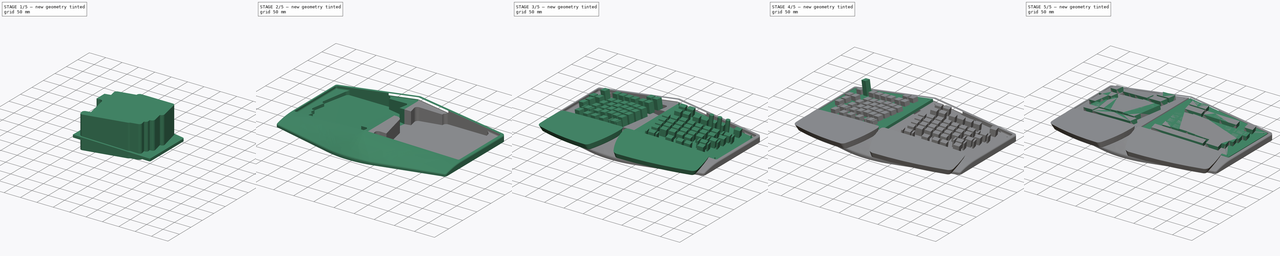
[diagram: build sequence overview — one tinted view per stage of 5, left to right]
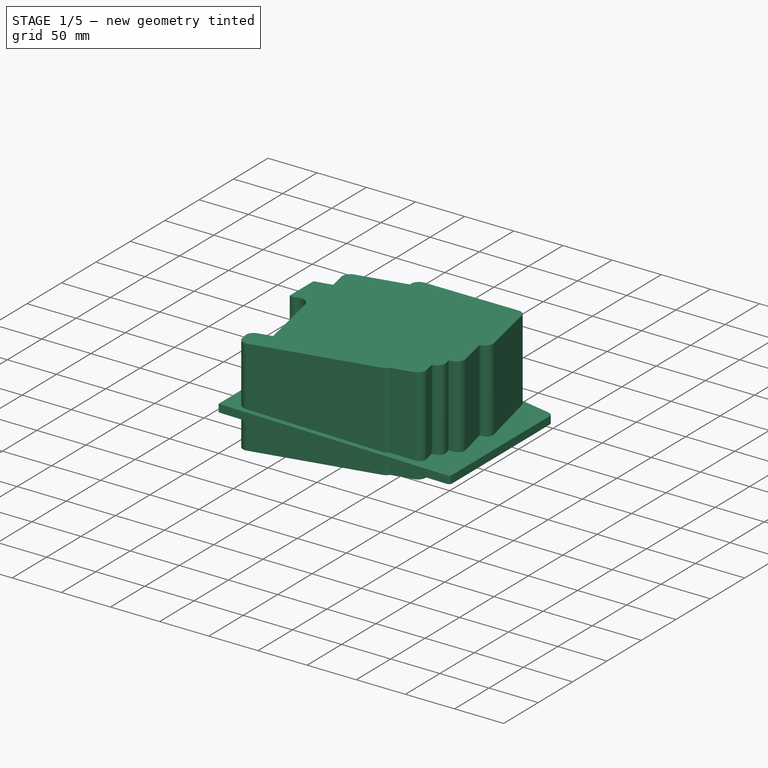
[diagram: stage 1 of 5 — iso view after this stage's code; geometry added in this stage tinted green]
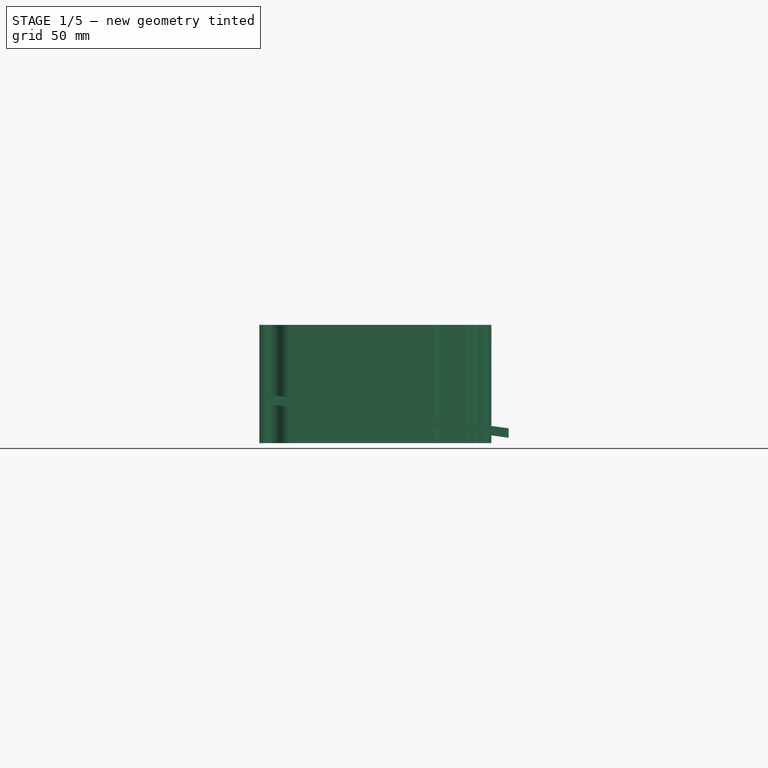
[diagram: stage 1 of 5 — front view after this stage's code; geometry added in this stage tinted green]
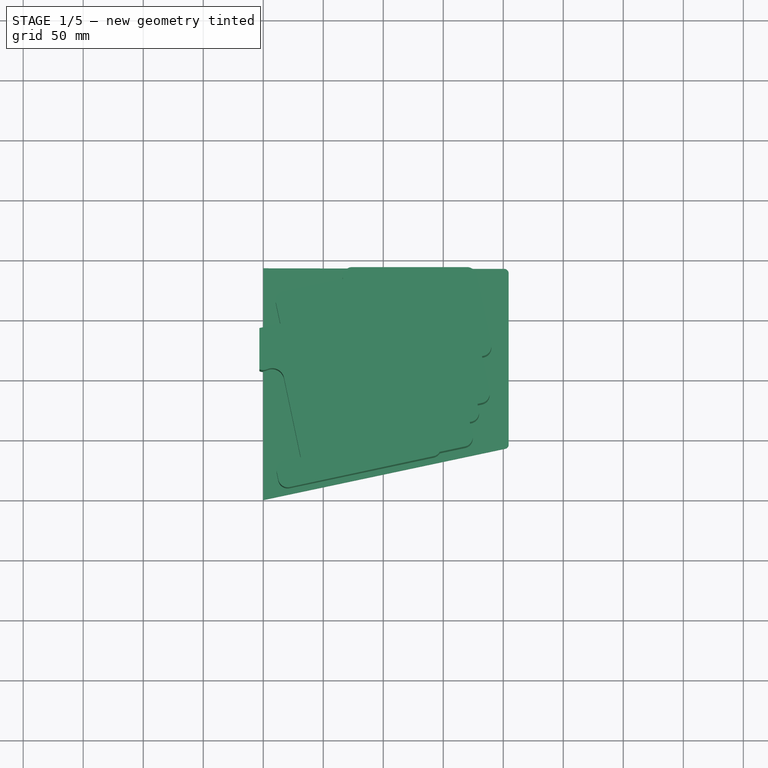
[diagram: stage 1 of 5 — top view after this stage's code; geometry added in this stage tinted green]
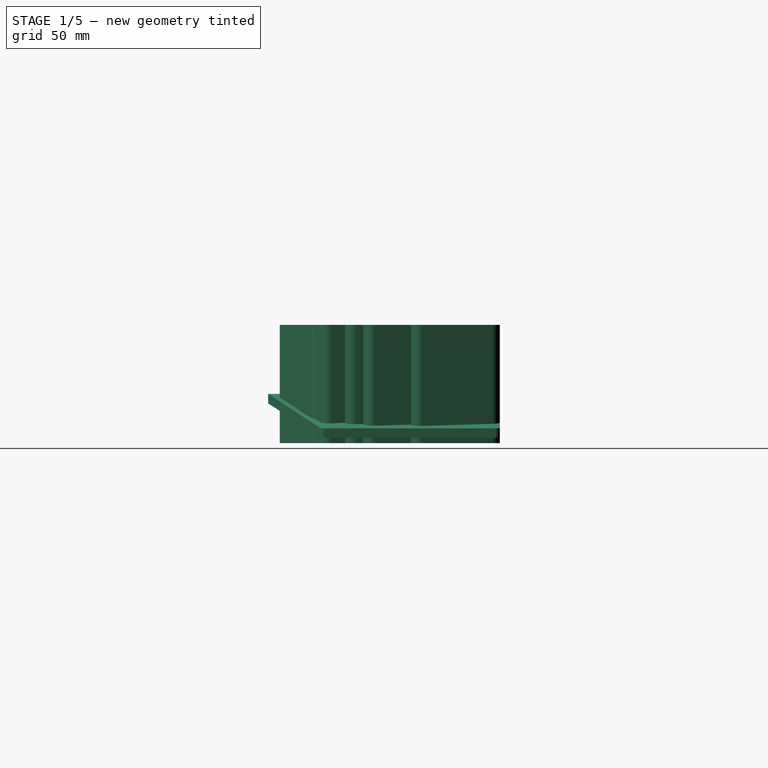
[diagram: stage 1 of 5 — right view after this stage's code; geometry added in this stage tinted green]
FCSTD DOCUMENT  (FreeCAD 0.19R)
Label: enclosure
License: All rights reserved
LicenseURL: http://en.wikipedia.org/wiki/All_rights_reserved
objects: Sketcher::SketchObject×28, Part::Extrusion×24, Part::Cut×9, Part::Mirroring×8, Part::Feature×4, Part::MultiFuse×4, Part::Fillet×3, Part::MultiCommon×2, Spreadsheet::Sheet×1, Part::Loft×1, Part::Box×1
note: 84 computed .brp shape members not serialized (recipe doc carries the construction recipe); baked Part::Feature solids carry a one-line shape summary decoded from their .brp

FEATURE [Spreadsheet::Sheet] Spreadsheet
  cells = A1=Tilt; B1(Tilt)=0; D1=Calculated Values; E1=*relative to reference plane origin; G1=Column offsets; H1=relative to pinky; A2=Tent; B2(Tent)=8; D2=PCBBottomDepth; E2(PCBBottomDepth)==JCapHeight + SwitchBodyHeight + PCBThickness; F2=*; G2=RingOffset; H2(RingOffset)==0.75" / 8; A3=Slant; B3(Slant)=12; D3=SwitchUnderPlate; E3(SwitchUnderPlate)==SwitchHeight - (SwitchAbovePlate + PlateThickness); G3=MiddleOffset; H3(MiddleOffset)==0.75" / 4; A4=HomeKeySplit; B4(HomeKeySplit)==3.336"; D4=PlateBottomDepth; E4(PlateBottomDepth)==JCapHeight + SwitchAbovePlate + PlateThickness; F4=*; G4=IndexOffset; H4(IndexOffset)==0.75" / 8; A5=JCapHeight; B5(JCapHeight)==9.300000000000001mm; G5=ReachOffset; H5(ReachOffset)==0"; A6=JElevation; B6(JElevation)==1.875"; C6=To top right corner of key cap; A7=SwitchBodyHeight; B7(SwitchBodyHeight)==SwitchPCBToPlate + SwitchAbovePlate; C7=bottom of cap to pin start; A8=SwitchPinHeight; B8(SwitchPinHeight)==3.3mm; A9=SwitchPCBToPlate; B9(SwitchPCBToPlate)==5mm; A10=SwitchHeight; B10(SwitchHeight)==SwitchBodyHeight + SwitchPinHeight; C10=Below the cap, including pins; A11=SwitchAbovePlate; B11(SwitchAbovePlate)==6.4mm; C11=Below the cap; A12=ComponentsToSide; B12(ComponentsToSide)==0.5"; A13=ComponentsToBack; B13(ComponentsToBack)==0.25"; A14=ComponentsToPalmRest; B14(ComponentsToPalmRest)==0.25"; A15=ICX; B15(ICX)==35.56mm; A16=ICY; B16(ICY)==17.78mm; A17=ICZ; B17(ICZ)==3.07mm + HeaderDepth; C17=Doesn't include USB cable shroud; A18=PCBThickness; B18(PCBThickness)==1.57mm; A19=PlateThickness; B19(PlateThickness)==1.4mm; A20=HeaderDepth; B20(HeaderDepth)==2.5mm; A21=HoleExtra; B21(HoleExtra)==5"; C21=(was 1/4", now just bigger than needed); A22=EnclosureThickness; B22(EnclosureThickness)==1" / 4; A23=PalmrestInnerAngle; B23(PalmrestInnerAngle)=30; A24=PalmrestOuterAngle; B24(PalmrestOuterAngle)=8.25; A25=CutoutFloorThickness; B25(CutoutFloorThickness)==1" / 8; A26=InsertDiameter; B26(InsertDiameter)==3.5mm; A27=InsertDepth; B27(InsertDepth)==6mm; A28=CutoutMargin; B28(CutoutMargin)==1" / 16; A29=ScrewDiameter; B29(ScrewDiameter)==2mm; A30=ScrewClearance; B30(ScrewClearance)==0.4mm; A31=PlateClearance; B31(PlateClearance)==1" / 8; A32=PlateCornerRadius; B32(PlateCornerRadius)==0.125"; A33=ScrewEdgeOffset; B33(ScrewEdgeOffset)==0.33"; A34=TopClearance; B34(TopClearance)==1.5mm; C34=Clearance around top for pleather; A35=TopHeight; B35(TopHeight)==1" / 4; A36=TopCornerRadius; B36(TopCornerRadius)==0.25"; A37=TopInnerClearance; B37(TopInnerClearance)==1.65mm; A38=ResetSwitchSide; B38(ResetSwitchSide)==0.5"; A39=FrontCutInnerSize; B39(FrontCutInnerSize)==3"; A40=PalmPadAngle; B40(PalmPadAngle)=7.5; A41=PalmPadHeight; B41(PalmPadHeight)==0.6"; A42=PalmPadSink; B42(PalmPadSink)==7" / 32; A43=PalmPadXOffset; B43(PalmPadXOffset)==3" / 16; A44=PalmPadYOffset; B44(PalmPadYOffset)==1" / 4; A45=FrontCutOuterSize; B45(FrontCutOuterSize)==1.5"; A46=NoseCutOffset; B46(NoseCutOffset)==11"; A47=CutoutFillet; B47(CutoutFillet)==(2" - CutoutFloorThickness) / 3 / 2; A48=ShallowHoleFillet; B48(ShallowHoleFillet)==1" / 4 * 1.2 / 2; A49=BackThickness; B49(BackThickness)==1" / 4; A50=FrontCutHeight; B50(FrontCutHeight)==0.25"; A51=NoseInnerBulge; B51(NoseInnerBulge)==0.19"
FEATURE [Sketcher::SketchObject] Sketch  label="Tent Sketch"
  Placement = pos=(0,0,0) rot=(1,0,0;1.5708rad)
  expr: Constraints[2] = Spreadsheet.Tent
  sketch-geometry (1):
    g0: LineSegment StartX=0 StartY=0 StartZ=0 EndX=25.1528 EndY=-3.535 EndZ=0
  constraints (3):
    c: Coincident(g0,g-1)
    c: Distance(g0) = 25.4
    c: Angle(g0,g-1) = 0.139626
FEATURE [Part::Extrusion] Extrude  label="Right Tent and Tilt Reference Plane"
  Base = -> Sketch
  Dir = (0,-1,2e-16)
  DirMode = 2
  FaceMakerClass = Part::FaceMakerBullseye
  LengthFwd = 25.4
  LengthRev = 0
  Placement = pos=(42.3672,0,47.625) rot=(1,0,0;0rad)
  Solid = false
  Symmetric = false
  expr: .Placement.Base.z = Spreadsheet.JElevation
  expr: .Placement.Base.x = Spreadsheet.HomeKeySplit / 2
  expr: .Placement.Rotation.Angle = Spreadsheet.Tilt
FEATURE [Sketcher::SketchObject] Sketch001  label="J Cap Top"
  MapMode = 5
  Placement = pos=(42.3672,0,47.625) rot=(0,1,0;0.139626rad)
  Support = -> [Extrude]
  expr: Constraints[10] = 180 - Spreadsheet.Slant
  sketch-geometry (4):
    g0: LineSegment StartX=-4e-16 StartY=0 StartZ=0 EndX=18.6337 EndY=3.96072 EndZ=0
    g1: LineSegment StartX=18.6337 StartY=3.96072 StartZ=0 EndX=22.5944 EndY=-14.673 EndZ=0
    g2: LineSegment StartX=22.5944 StartY=-14.673 StartZ=0 EndX=3.96072 EndY=-18.6337 EndZ=0
    g3: LineSegment StartX=3.96072 StartY=-18.6337 StartZ=0 EndX=-4e-16 EndY=0 EndZ=0
  constraints (11):
    c: Coincident(g-1,g0)
    c: Coincident(g0,g1)
    c: Coincident(g1,g2)
    c: Coincident(g2,g3)
    c: Coincident(g3,g0)
    c: Equal(g3,g2)
    c: Perpendicular(g2,g3)
    c: Parallel(g3,g1)
    c: Parallel(g0,g2)
    c: Distance(g0) = 19.05
    c: Angle(g3,g-2) = 2.93215
FEATURE [Part::Extrusion] Extrude001  label="J Cap"
  Base = -> Sketch001
  Dir = (0.139173,2e-16,0.990268)
  DirMode = 2
  FaceMakerClass = Part::FaceMakerBullseye
  LengthFwd = 9.3
  LengthRev = 0
  Reversed = true
  Solid = true
  Symmetric = false
  expr: LengthFwd = Spreadsheet.JCapHeight
FEATURE [Sketcher::SketchObject] Sketch002  label="Right Key  Footprints"
  AttachmentOffset = pos=(0,0,-24) rot=(0,0,1;0rad)
  ExternalGeometry = -> [Extrude001]
  MapMode = 5
  Placement = pos=(39.027,-5.3e-15,23.8586) rot=(0,1,0;0.139626rad)
  Support = -> [Extrude]
  expr: .AttachmentOffset.Base.z = -(Spreadsheet.JCapHeight + Spreadsheet.SwitchHeight)
  expr: Constraints[33] = 0.75" + Spreadsheet.ReachOffset
  sketch-geometry (32):
    g0: LineSegment StartX=-22.1852 StartY=12.7475 StartZ=0 EndX=145.518 EndY=48.394 EndZ=0
    g1: LineSegment StartX=145.518 StartY=48.394 StartZ=0 EndX=149.479 EndY=29.7603 EndZ=0
    g2: LineSegment StartX=149.479 StartY=29.7603 StartZ=0 EndX=140.162 EndY=27.7799 EndZ=0
    g3: LineSegment StartX=140.162 StartY=27.7799 StartZ=0 EndX=148.084 EndY=-9.48752 EndZ=0
    g4: LineSegment StartX=148.084 StartY=-9.48752 StartZ=0 EndX=134.108 EndY=-12.4581 EndZ=0
    g5: LineSegment StartX=134.108 StartY=-12.4581 StartZ=0 EndX=138.069 EndY=-31.0918 EndZ=0
    g6: LineSegment StartX=138.069 StartY=-31.0918 StartZ=0 EndX=128.752 EndY=-33.0721 EndZ=0
    g7: LineSegment StartX=128.752 StartY=-33.0721 StartZ=0 EndX=132.713 EndY=-51.7058 EndZ=0
    g8: LineSegment StartX=132.713 StartY=-51.7058 StartZ=0 EndX=104.762 EndY=-57.6469 EndZ=0
    g9: LineSegment StartX=104.762 StartY=-57.6469 StartZ=0 EndX=100.802 EndY=-39.0132 EndZ=0
    g10: LineSegment StartX=100.802 StartY=-39.0132 StartZ=0 EndX=-6.34228 EndY=-61.7873 EndZ=0
    g11: LineSegment StartX=-6.34228 StartY=-61.7873 StartZ=0 EndX=-22.1852 EndY=12.7475 EndZ=0
    g12: LineSegment StartX=97.1333 StartY=-44.6618 StartZ=0 EndX=-19.3274 EndY=-69.4163 EndZ=0
    g13: LineSegment StartX=-19.3274 StartY=-69.4163 StartZ=0 EndX=-15.3667 EndY=-88.05 EndZ=0
    g14: LineSegment StartX=-15.3667 StartY=-88.05 StartZ=0 EndX=101.094 EndY=-63.2955 EndZ=0
    g15: LineSegment StartX=101.094 StartY=-63.2955 StartZ=0 EndX=97.1333 EndY=-44.6618 EndZ=0
    g16: LineSegment StartX=-11.1804 StartY=29.6933 StartZ=0 EndX=-15.1411 EndY=48.327 EndZ=0
    g17: LineSegment StartX=-15.1411 StartY=48.327 StartZ=0 EndX=138.587 EndY=81.003 EndZ=0
    g18: LineSegment StartX=138.587 StartY=81.003 StartZ=0 EndX=142.548 EndY=62.3693 EndZ=0
    g19: LineSegment StartX=142.548 StartY=62.3693 StartZ=0 EndX=-11.1804 EndY=29.6933 EndZ=0
    g20: LineSegment StartX=-16.1313 StartY=52.9855 StartZ=0 EndX=-20.092 EndY=71.6192 EndZ=0
    g21: LineSegment StartX=-20.092 StartY=71.6192 StartZ=0 EndX=17.1754 EndY=79.5406 EndZ=0
    g22: LineSegment StartX=17.1754 StartY=79.5406 StartZ=0 EndX=21.1361 EndY=60.9069 EndZ=0
    g23: LineSegment StartX=21.1361 StartY=60.9069 StartZ=0 EndX=-16.1313 EndY=52.9855 EndZ=0
    g24: LineSegment [constr] StartX=0 StartY=0 StartZ=0 EndX=-32.609 EndY=-6.93126 EndZ=0
    g25: LineSegment [constr] StartX=-19.3274 StartY=-69.4163 StartZ=0 EndX=-32.609 EndY=-6.93126 EndZ=0
    g26: LineSegment StartX=148.376 StartY=-33.7698 StartZ=0 EndX=134.401 EndY=-36.7404 EndZ=0
    g27: LineSegment StartX=134.401 StartY=-36.7404 StartZ=0 EndX=138.361 EndY=-55.3741 EndZ=0
    g28: LineSegment StartX=138.361 StartY=-55.3741 StartZ=0 EndX=152.337 EndY=-52.4036 EndZ=0
    g29: LineSegment StartX=152.337 StartY=-52.4036 StartZ=0 EndX=148.376 EndY=-33.7698 EndZ=0
    g30: LineSegment [constr] StartX=134.401 StartY=-36.7404 StartZ=0 EndX=129.742 EndY=-37.7306 EndZ=0
    g31: LineSegment [constr] StartX=134.401 StartY=-36.7404 StartZ=0 EndX=133.411 EndY=-32.082 EndZ=0
  constraints (96):
    c: Coincident(g0,g1)
    c: Coincident(g1,g2)
    c: Coincident(g2,g3)
    c: Coincident(g3,g4)
    c: Coincident(g4,g5)
    c: Coincident(g5,g6)
    c: Coincident(g6,g7)
    c: Coincident(g7,g8)
    c: Coincident(g8,g9)
    c: Coincident(g9,g10)
    c: Coincident(g10,g11)
    c: Coincident(g11,g0)
    c: Coincident(g12,g13)
    c: Coincident(g13,g14)
    c: Coincident(g14,g15)
    c: Coincident(g15,g12)
    c: Coincident(g16,g17)
    c: Coincident(g17,g18)
    c: Coincident(g18,g19)
    c: Coincident(g19,g16)
    c: Coincident(g20,g21)
    c: Coincident(g21,g22)
    c: Coincident(g22,g23)
    c: Coincident(g23,g20)
    c: Distance(g20) = 19.05
    c: Distance(g16) = 19.05
    c: Distance(g9) = 19.05
    c: Distance(g13) = 19.05
    c: Distance(g7) = 19.05
    c: Distance(g5) = 19.05
    c: Distance(g3) = 38.1
    c: Distance(g-1,g11) = 19.05
    c: Distance(g21) = 38.1
    c: Distance(g1) = 19.05
    c: Parallel(g-5,g11)
    c: Parallel(g11,g16)
    c: Parallel(g11,g20)
    c: Parallel(g11,g13)
    c: Parallel(g11,g9)
    c: Parallel(g11,g5)
    c: Parallel(g11,g3)
    c: Parallel(g11,g1)
    c: Parallel(g9,g7)
    c: Parallel(g13,g15)
    c: Parallel(g16,g18)
    c: Parallel(g20,g22)
    c: Parallel(g21,g23)
    c: Parallel(g17,g19)
    c: Parallel(g0,g2)
    c: Parallel(g0,g4)
    c: Parallel(g0,g6)
    c: Parallel(g0,g8)
    c: Parallel(g12,g14)
    c: Parallel(g-6,g0)
    c: Parallel(g-6,g17)
    c: Parallel(g-6,g21)
    c: Parallel(g0,g12)
    c: Parallel(g0,g10)
    c: Distance(g11) = 76.2
    c: Distance(g10,g12) = 4.7625
    c: Distance(g12) = 119.062
    c: Coincident(g24,g-1)
    c: Coincident(g25,g12)
    c: Coincident(g25,g24)
    c: Perpendicular(g25,g24)
    c: Parallel(g24,g12)
    c: Distance(g24) = 33.3375
    c: Distance(g10,g5) = 147.637
    c: Distance(g-1,g12) = 63.881
    c: Distance(g4) = 14.2875
    c: Distance(g2) = 9.525
    c: Distance(g8) = 28.575
    c: Distance(g12,g7) = 33.3375
    c: Distance(g16,g0) = 33.3375
    c: Distance(g20,g17) = 23.8125
    c: PointOnObject(g20,g16)
    c: Distance(g19) = 157.162
    c: PointOnObject(g17,g1)
    c: Coincident(g26,g27)
    c: Coincident(g27,g28)
    c: Coincident(g28,g29)
    c: Coincident(g29,g26)
    c: Distance(g26) = 14.2875
    c: Parallel(g26,g8)
    c: Parallel(g8,g28)
    c: Parallel(g7,g27)
    c: Parallel(g27,g29)
    c: Distance(g29) = 19.05
    c: Coincident(g30,g26)
    c: PointOnObject(g30,g7)
    c: Coincident(g31,g26)
    c: PointOnObject(g31,g6)
    c: PointOnObject(g31,g27)
    c: PointOnObject(g30,g26)
    c: Distance(g31) = 4.7625
    c: Distance(g30) = 4.7625
FEATURE [Part::Extrusion] Extrude002  label="Switches"
  Base = -> Sketch002
  Dir = (0.139173,2e-16,0.990268)
  DirMode = 2
  FaceMakerClass = Part::FaceMakerBullseye
  LengthFwd = 14.7
  LengthRev = 0
  Solid = true
  Symmetric = false
  expr: LengthFwd = Spreadsheet.SwitchHeight
FEATURE [Sketcher::SketchObject] Sketch003  label="IC Footprint"
  AttachmentOffset = pos=(0,0,-22.27) rot=(0,0,1;0rad)
  ExternalGeometry = -> [Extrude002]
  MapMode = 5
  Placement = pos=(39.2678,-4.9e-15,25.5717) rot=(0,1,0;0.139626rad)
  Support = -> [Extrude]
  expr: .AttachmentOffset.Base.z = -Spreadsheet.PCBBottomDepth
  expr: Constraints[5] = Spreadsheet.ICX
  expr: Constraints[4] = Spreadsheet.ICY
  sketch-geometry (4):
    g0: LineSegment StartX=22.0979 StartY=79.2886 StartZ=0 EndX=25.7945 EndY=61.8971 EndZ=0
    g1: LineSegment StartX=25.7945 StartY=61.8971 StartZ=0 EndX=60.5775 EndY=69.2904 EndZ=0
    g2: LineSegment StartX=60.5775 StartY=69.2904 StartZ=0 EndX=56.8808 EndY=86.6819 EndZ=0
    g3: LineSegment StartX=56.8808 StartY=86.6819 StartZ=0 EndX=22.0979 EndY=79.2886 EndZ=0
  constraints (12):
    c: Coincident(g0,g1)
    c: Coincident(g1,g2)
    c: Coincident(g2,g3)
    c: Coincident(g3,g0)
    c: Distance(g0) = 17.78
    c: Distance(g1) = 35.56
    c: Perpendicular(g0,g3)
    c: Parallel(g1,g3)
    c: Parallel(g0,g2)
    c: Parallel(g3,g-4)
    c: PointOnObject(g0,g-4)
    c: Distance(g0,g-5) = 4.7625
FEATURE [Part::Extrusion] Extrude003  label="IC"
  Base = -> Sketch003
  Dir = (0.139173,2e-16,0.990268)
  DirMode = 2
  FaceMakerClass = Part::FaceMakerBullseye
  LengthFwd = 8.07
  LengthRev = 0
  Reversed = true
  Solid = true
  Symmetric = false
  expr: LengthFwd = Spreadsheet.ICZ + Spreadsheet.HeaderDepth
FEATURE [Part::Extrusion] Extrude005  label="Hole Depth"
  Base = -> Sketch006
  Dir = (0.139173,2e-16,0.990268)
  DirMode = 2
  FaceMakerClass = Part::FaceMakerBullseye
  LengthFwd = 7.8
  LengthRev = 0
  Reversed = true
  Solid = true
  Symmetric = false
  expr: LengthFwd = Spreadsheet.SwitchAbovePlate + Spreadsheet.PlateThickness
FEATURE [Sketcher::SketchObject] Sketch013  label="Cutout Outline"
  AttachmentOffset = pos=(0,0,-17.1) rot=(0,0,1;0rad)
  ExternalGeometry = -> [Extrude002,Extrude003]
  MapMode = 5
  Placement = pos=(39.9873,-3.8e-15,30.6914) rot=(0,1,0;0.139626rad)
  Support = -> [Extrude]
  expr: Constraints[10] = Spreadsheet.CutoutMargin
  expr: .AttachmentOffset.Base.z = -(Spreadsheet.JCapHeight + Spreadsheet.SwitchAbovePlate + Spreadsheet.PlateThickness)
  expr: Constraints[104] = Spreadsheet.CutoutMargin * 2
  sketch-geometry (37):
    g0: LineSegment StartX=151.362 StartY=28.5375 StartZ=0 EndX=142.045 EndY=26.5571 EndZ=0
    g1: LineSegment StartX=142.045 StartY=26.5571 StartZ=0 EndX=149.966 EndY=-10.7103 EndZ=0
    g2: LineSegment StartX=149.966 StartY=-10.7103 StartZ=0 EndX=135.991 EndY=-13.6808 EndZ=0
    g3: LineSegment StartX=135.991 StartY=-13.6808 StartZ=0 EndX=139.952 EndY=-32.3145 EndZ=0
    g4: LineSegment StartX=139.952 StartY=-32.3145 StartZ=0 EndX=130.635 EndY=-34.2949 EndZ=0
    g5: LineSegment StartX=130.635 StartY=-34.2949 StartZ=0 EndX=134.596 EndY=-52.9286 EndZ=0
    g6: LineSegment StartX=134.596 StartY=-52.9286 StartZ=0 EndX=101.987 EndY=-59.8599 EndZ=0
    g7: LineSegment StartX=101.987 StartY=-59.8599 StartZ=0 EndX=102.977 EndY=-64.5183 EndZ=0
    g8: LineSegment StartX=102.977 StartY=-64.5183 StartZ=0 EndX=-18.1422 EndY=-90.2629 EndZ=0
    g9: LineSegment StartX=-18.1422 StartY=-90.2629 StartZ=0 EndX=-22.7631 EndY=-68.5236 EndZ=0
    g10: LineSegment StartX=-22.7631 StartY=-68.5236 StartZ=0 EndX=-8.78778 EndY=-65.5531 EndZ=0
    g11: LineSegment StartX=-8.78778 StartY=-65.5531 StartZ=0 EndX=-24.9607 EndY=10.5346 EndZ=0
    g12: LineSegment StartX=-23.5277 StartY=72.5119 StartZ=0 EndX=56.2867 EndY=89.4769 EndZ=0
    g13: LineSegment StartX=56.2867 StartY=89.4769 StartZ=0 EndX=45.7248 EndY=139.167 EndZ=0
    g14: LineSegment StartX=45.7248 StartY=139.167 StartZ=0 EndX=124.297 EndY=155.868 EndZ=0
    g15: LineSegment StartX=124.297 StartY=155.868 StartZ=0 EndX=151.362 EndY=28.5375 EndZ=0
    g16: LineSegment StartX=-23.5277 StartY=72.5119 StartZ=0 EndX=-18.2467 EndY=47.6669 EndZ=0
    g17: LineSegment StartX=-18.2467 StartY=47.6669 StartZ=0 EndX=-67.9366 EndY=37.105 EndZ=0
    g18: LineSegment StartX=-67.9366 StartY=37.105 StartZ=0 EndX=-60.6753 EndY=2.94321 EndZ=0
    g19: LineSegment StartX=-60.6753 StartY=2.94321 StartZ=0 EndX=-24.9607 EndY=10.5346 EndZ=0
    g20: LineSegment [constr] StartX=-20.092 StartY=71.6192 StartZ=0 EndX=-20.4221 EndY=73.172 EndZ=0
    g21: LineSegment [constr] StartX=-20.092 StartY=71.6192 StartZ=0 EndX=-23.1976 EndY=70.9591 EndZ=0
    g22: LineSegment [constr] StartX=-8.78778 StartY=-65.5531 StartZ=0 EndX=-8.45772 EndY=-67.1059 EndZ=0
    g23: LineSegment [constr] StartX=-19.3274 StartY=-69.4163 StartZ=0 EndX=-22.433 EndY=-70.0764 EndZ=0
    g24: LineSegment [constr] StartX=-15.3667 StartY=-88.05 StartZ=0 EndX=-15.0366 EndY=-89.6028 EndZ=0
    g25: LineSegment [constr] StartX=101.094 StartY=-63.2955 StartZ=0 EndX=102.647 EndY=-62.9655 EndZ=0
    g26: LineSegment [constr] StartX=104.762 StartY=-57.6469 StartZ=0 EndX=105.092 EndY=-59.1997 EndZ=0
    g27: LineSegment [constr] StartX=132.713 StartY=-51.7058 StartZ=0 EndX=134.266 EndY=-51.3758 EndZ=0
    g28: LineSegment [constr] StartX=130.635 StartY=-34.2949 StartZ=0 EndX=130.305 EndY=-32.7421 EndZ=0
    g29: LineSegment [constr] StartX=138.069 StartY=-31.0918 StartZ=0 EndX=139.622 EndY=-30.7617 EndZ=0
    g30: LineSegment [constr] StartX=135.991 StartY=-13.6808 StartZ=0 EndX=135.661 EndY=-12.128 EndZ=0
    g31: LineSegment [constr] StartX=148.084 StartY=-9.48752 StartZ=0 EndX=149.636 EndY=-9.15746 EndZ=0
    g32: LineSegment [constr] StartX=142.045 StartY=26.5571 StartZ=0 EndX=141.715 EndY=28.11 EndZ=0
    g33: LineSegment [constr] StartX=149.479 StartY=29.7603 StartZ=0 EndX=151.032 EndY=30.0903 EndZ=0
    g34: LineSegment [constr] StartX=56.8808 StartY=86.6819 StartZ=0 EndX=56.2867 EndY=89.4769 EndZ=0
    g35: LineSegment [constr] StartX=-22.1852 StartY=12.7475 StartZ=0 EndX=-25.2908 EndY=12.0874 EndZ=0
    g36: LineSegment [constr] StartX=-24.9607 StartY=10.5346 StartZ=0 EndX=-25.2908 EndY=12.0874 EndZ=0
  constraints (109):
    c: Parallel(g-6,g14)
    c: Distance(g13) = 50.8
    c: Perpendicular(g19,g18)
    c: Distance(g17) = 50.8
    c: Perpendicular(g18,g17)
    c: Perpendicular(g14,g13)
    c: Coincident(g20,g-4)
    c: PointOnObject(g20,g12)
    c: Coincident(g21,g20)
    c: PointOnObject(g21,g16)
    c: Distance(g20) = 1.5875
    c: Coincident(g12,g16)
    c: Perpendicular(g12,g20)
    c: Perpendicular(g16,g21)
    c: PointOnObject(g17,g-6)
    c: Coincident(g16,g17)
    c: Coincident(g17,g18)
    c: Parallel(g-3,g16)
    c: Parallel(g18,g-22)
    c: Coincident(g11,g19)
    c: Coincident(g18,g19)
    c: Coincident(g11,g10)
    c: Coincident(g10,g9)
    c: Parallel(g-20,g11)
    c: Coincident(g22,g10)
    c: PointOnObject(g22,g-19)
    c: Perpendicular(g-19,g22)
    c: Equal(g20,g22)
    c: Parallel(g-19,g10)
    c: Coincident(g23,g-19)
    c: PointOnObject(g23,g9)
    c: PointOnObject(g23,g-19)
    c: Coincident(g8,g9)
    c: Parallel(g-18,g9)
    c: Coincident(g24,g-18)
    c: PointOnObject(g24,g8)
    c: PointOnObject(g24,g-18)
    c: Parallel(g-17,g8)
    c: Parallel(g-15,g6)
    c: Coincident(g8,g7)
    c: Coincident(g25,g-17)
    c: PointOnObject(g25,g7)
    c: Perpendicular(g25,g7)
    c: Equal(g25,g24)
    c: PointOnObject(g25,g-17)
    c: Coincident(g6,g7)
    c: Coincident(g26,g-15)
    c: PointOnObject(g26,g6)
    c: Perpendicular(g26,g6)
    c: Equal(g25,g26)
    c: Coincident(g5,g6)
    c: Coincident(g5,g4)
    c: Coincident(g4,g3)
    c: Coincident(g3,g2)
    c: Coincident(g2,g1)
    c: Coincident(g0,g1)
    c: Coincident(g0,g15)
    c: Coincident(g14,g15)
    c: Coincident(g14,g13)
    c: Coincident(g13,g12)
    c: Coincident(g27,g-15)
    c: PointOnObject(g27,g5)
    c: Equal(g26,g27)
    c: PointOnObject(g27,g-15)
    c: Coincident(g28,g4)
    c: PointOnObject(g28,g-13)
    c: Equal(g27,g28)
    c: Coincident(g29,g-13)
    c: PointOnObject(g29,g3)
    c: Equal(g28,g29)
    c: Coincident(g30,g2)
    c: PointOnObject(g30,g-11)
    c: Equal(g30,g29)
    c: Coincident(g31,g-11)
    c: PointOnObject(g31,g1)
    c: Equal(g30,g31)
    c: Coincident(g32,g0)
    c: PointOnObject(g32,g-9)
    c: Equal(g31,g32)
    c: Coincident(g33,g-9)
    c: PointOnObject(g33,g15)
    c: Equal(g32,g33)
    c: Parallel(g-7,g15)
    c: Parallel(g-4,g12)
    c: Parallel(g-9,g0)
    c: Parallel(g-10,g1)
    c: Parallel(g-11,g2)
    c: Parallel(g3,g-12)
    c: Parallel(g-13,g4)
    c: Parallel(g5,g-14)
    c: Perpendicular(g32,g0)
    c: Perpendicular(g33,g15)
    c: Perpendicular(g31,g1)
    c: Perpendicular(g29,g3)
    c: Perpendicular(g28,g4)
    c: Parallel(g30,g3)
    c: Coincident(g34,g-5)
    c: PointOnObject(g34,g-5)
    c: Coincident(g35,g-21)
    c: Coincident(g36,g11)
    c: Coincident(g36,g35)
    c: PointOnObject(g35,g-21)
    c: PointOnObject(g35,g11)
    c: Coincident(g34,g12)
    c: Distance(g21) = 3.175
    c: Equal(g21,g35)
    c: Equal(g21,g23)
    c: Equal(g20,g36)
    c: Equal(g20,g27)
FEATURE [Part::Box] Box  label="Bottom Thickness"
  AttacherType = Attacher::AttachEngine3D
  Height = 28.575
  Length = 457.2
  Placement = pos=(-228.6,-228.6,-25.4) rot=(0,0,1;0rad)
  Width = 457.2
  expr: Height = 1" + Spreadsheet.CutoutFloorThickness
FEATURE [Sketcher::SketchObject] Sketch014  label="Cutout 2.5D Outline"
  ExternalGeometry = -> [Sketch005,Sketch013]
  expr: Constraints[58] = Spreadsheet.CutoutFillet
  sketch-geometry (37):
    g0: LineSegment StartX=177.627 StartY=86.7293 StartZ=0 EndX=189.876 EndY=28.5375 EndZ=0
    g1: ArcOfCircle CenterX=182.109 CenterY=26.9026 CenterZ=0 NormalX=0 NormalY=0 NormalZ=1 AngleXU=0 Radius=7.9375 StartAngle=4.91985 EndAngle=6.49064
    g2: LineSegment StartX=183.744 StartY=19.1353 StartZ=0 EndX=182.277 EndY=18.8266 EndZ=0
    g3: LineSegment StartX=182.277 StartY=18.8266 StartZ=0 EndX=188.494 EndY=-10.7103 EndZ=0
    g4: ArcOfCircle CenterX=180.727 CenterY=-12.3452 CenterZ=0 NormalX=0 NormalY=0 NormalZ=1 AngleXU=0 Radius=7.9375 StartAngle=4.92383 EndAngle=6.49064
    g5: LineSegment StartX=182.393 StartY=-20.1059 StartZ=0 EndX=178.557 EndY=-20.9294 EndZ=0
    g6: LineSegment StartX=178.557 StartY=-20.9294 StartZ=0 EndX=179.696 EndY=-26.3434 EndZ=0
    g7: ArcOfCircle CenterX=171.929 CenterY=-27.9783 CenterZ=0 NormalX=0 NormalY=0 NormalZ=1 AngleXU=0 Radius=7.9375 StartAngle=4.91985 EndAngle=6.49064
    g8: LineSegment StartX=173.564 StartY=-35.7456 StartZ=0 EndX=172.086 EndY=-36.0566 EndZ=0
    g9: LineSegment StartX=172.086 StartY=-36.0566 StartZ=0 EndX=174.383 EndY=-46.9707 EndZ=0
    g10: ArcOfCircle CenterX=166.616 CenterY=-48.6056 CenterZ=0 NormalX=0 NormalY=0 NormalZ=1 AngleXU=0 Radius=7.9375 StartAngle=4.92383 EndAngle=6.49064
    g11: LineSegment StartX=168.282 StartY=-56.3663 StartZ=0 EndX=147.053 EndY=-60.923 EndZ=0
    g12: ArcOfCircle CenterX=140.296 CenterY=-56.7575 CenterZ=0 NormalX=0 NormalY=0 NormalZ=1 AngleXU=0 Radius=7.9375 StartAngle=4.92383 EndAngle=5.73072
    g13: LineSegment StartX=141.962 StartY=-64.5183 StartZ=0 EndX=22.0217 EndY=-90.2629 EndZ=0
    g14: ArcOfCircle CenterX=20.3559 CenterY=-82.5022 CenterZ=0 NormalX=0 NormalY=0 NormalZ=1 AngleXU=0 Radius=7.9375 StartAngle=3.33909 EndAngle=4.92383
    g15: LineSegment StartX=12.5727 StartY=-84.0597 StartZ=0 EndX=11.3284 EndY=-77.8418 EndZ=0
    g16: ArcOfCircle CenterX=19.1116 CenterY=-76.2843 CenterZ=0 NormalX=0 NormalY=0 NormalZ=1 AngleXU=0 Radius=7.9375 StartAngle=1.78223 EndAngle=3.33909
    g17: LineSegment StartX=17.4458 StartY=-68.5236 StartZ=0 EndX=31.2851 EndY=-65.5531 EndZ=0
    g18: LineSegment StartX=14.2562 StartY=46.0223 StartZ=0 EndX=10.5937 EndY=63.0853 EndZ=0
    g19: ArcOfCircle CenterX=18.3544 CenterY=64.7511 CenterZ=0 NormalX=0 NormalY=0 NormalZ=1 AngleXU=0 Radius=7.9375 StartAngle=1.78223 EndAngle=3.35303
    g20: LineSegment StartX=74.0984 StartY=93.0319 StartZ=0 EndX=169.86 EndY=93.0319 EndZ=0
    g21: ArcOfCircle CenterX=169.86 CenterY=85.0944 CenterZ=0 NormalX=0 NormalY=0 NormalZ=1 AngleXU=0 Radius=7.9375 StartAngle=0.20746 EndAngle=1.5708
    g22: LineSegment StartX=16.6886 StartY=72.5119 StartZ=0 EndX=66.3909 EndY=83.1803 EndZ=0
    g23: LineSegment StartX=66.3909 StartY=83.1803 StartZ=0 EndX=66.3376 EndY=83.4286 EndZ=0
    g24: ArcOfCircle CenterX=74.0984 CenterY=85.0944 CenterZ=0 NormalX=0 NormalY=0 NormalZ=1 AngleXU=0 Radius=7.9375 StartAngle=1.5708 EndAngle=3.35303
    g25: LineSegment StartX=14.2562 StartY=46.0223 StartZ=0 EndX=-3.25742 EndY=42.2631 EndZ=0
    g26: LineSegment StartX=-3.25742 StartY=42.2631 StartZ=0 EndX=-3.25742 EndY=7.95623 EndZ=0
    g27: GeomPoint X=0 Y=7.25704 Z=0
    g28: LineSegment StartX=31.2851 StartY=-65.5531 StartZ=0 EndX=17.3163 EndY=0.810716 EndZ=0
    g29: ArcOfCircle CenterX=7.41133 CenterY=-1.27416 CenterZ=0 NormalX=0 NormalY=0 NormalZ=1 AngleXU=0 Radius=10.122 StartAngle=0.20746 EndAngle=1.99367
    g30: ArcOfCircle CenterX=4e-16 CenterY=15.1945 CenterZ=0 NormalX=0 NormalY=0 NormalZ=1 AngleXU=0 Radius=7.9375 StartAngle=4.28951 EndAngle=5.13526
    g31: LineSegment [constr] StartX=176.63 StartY=-31.0445 StartZ=0 EndX=179.696 EndY=-26.3434 EndZ=0
    g32: LineSegment [constr] StartX=176.63 StartY=-31.0445 StartZ=0 EndX=178.577 EndY=-32.3145 EndZ=0
    g33: LineSegment [constr] StartX=168.282 StartY=-56.3663 StartZ=0 EndX=171.333 EndY=-51.6685 EndZ=0
    g34: LineSegment [constr] StartX=171.333 StartY=-51.6685 StartZ=0 EndX=174.383 EndY=-46.9707 EndZ=0
    g35: LineSegment [constr] StartX=171.333 StartY=-51.6685 StartZ=0 EndX=173.273 EndY=-52.9286 EndZ=0
    g36: LineSegment [constr] StartX=173.564 StartY=-35.7456 StartZ=0 EndX=176.63 EndY=-31.0445 EndZ=0
  constraints (102):
    c: PointOnObject(g0,g-21)
    c: Tangent(g0,g1) = 1.5708
    c: Tangent(g3,g4) = 1.5708
    c: Tangent(g6,g7) = 1.5708
    c: Coincident(g7,g8)
    c: Coincident(g12,g13)
    c: Tangent(g13,g14) = 1.5708
    c: Tangent(g15,g16) = 1.5708
    c: Coincident(g16,g17)
    c: Coincident(g17,g-10)
    c: Tangent(g18,g19) = 1.5708
    c: PointOnObject(g20,g-3)
    c: PointOnObject(g20,g-3)
    c: Tangent(g20,g21) = 1.5708
    c: Coincident(g21,g0)
    c: Tangent(g21,g0)
    c: Tangent(g1,g2)
    c: Tangent(g4,g5)
    c: Tangent(g10,g11)
    c: Tangent(g12,g13)
    c: Tangent(g14,g15) = 1.5708
    c: Tangent(g16,g17)
    c: Equal(g19,g21)
    c: Equal(g19,g1)
    c: Equal(g19,g4)
    c: Equal(g19,g7)
    c: Equal(g19,g10)
    c: Equal(g19,g12)
    c: Equal(g19,g14)
    c: Equal(g19,g16)
    c: Coincident(g22,g19)
    c: PointOnObject(g22,g-5)
    c: Coincident(g23,g22)
    c: Perpendicular(g23,g22)
    c: Tangent(g19,g22)
    c: Coincident(g24,g23)
    c: Coincident(g24,g20)
    c: Tangent(g23,g24)
    c: Tangent(g24,g20)
    c: Equal(g24,g19)
    c: Distance(g23) = 0.254
    c: Coincident(g10,g9)
    c: Tangent(g10,g9)
    c: Coincident(g18,g25)
    c: Coincident(g25,g26)
    c: PointOnObject(g25,g-7)
    c: Vertical(g26)
    c: PointOnObject(g27,g-2)
    c: PointOnObject(g27,g-8)
    c: Coincident(g17,g28)
    c: PointOnObject(g28,g-9)
    c: Tangent(g28,g29) = -1.5708
    c: PointOnObject(g29,g-8)
    c: Coincident(g30,g29)
    c: Tangent(g30,g29)
    c: Coincident(g26,g30)
    c: Symmetric(g29,g26,g-2)
    c: PointOnObject(g27,g30)
    c: Radius(g19) = 7.9375
    c: Equal(g30,g19)
    c: Coincident(g19,g-6)
    c: PointOnObject(g18,g-7)
    c: Perpendicular(g25,g18)
    c: Coincident(g16,g-11)
    c: Coincident(g13,g-12)
    c: Coincident(g2,g1)
    c: Coincident(g3,g2)
    c: Coincident(g0,g-21)
    c: Coincident(g12,g11)
    c: Coincident(g12,g-13)
    c: Coincident(g11,g10)
    c: Coincident(g4,g5)
    c: Coincident(g6,g5)
    c: PointOnObject(g-19,g4)
    c: Coincident(g9,g8)
    c: PointOnObject(g-17,g7)
    c: PointOnObject(g-15,g10)
    c: Parallel(g-19,g3)
    c: Parallel(g5,g-18)
    c: Parallel(g6,g-17)
    c: Parallel(g9,g-15)
    c: Parallel(g11,g-14)
    c: Perpendicular(g9,g8)
    c: Perpendicular(g3,g2)
    c: PointOnObject(g3,g-19)
    c: Coincident(g31,g6)
    c: Coincident(g32,g-17)
    c: Perpendicular(g32,g31)
    c: Coincident(g33,g10)
    c: Coincident(g34,g9)
    c: Coincident(g35,g33)
    c: Coincident(g35,g-15)
    c: Coincident(g34,g33)
    c: Perpendicular(g35,g33)
    c: Perpendicular(g35,g34)
    c: Equal(g33,g34)
    c: Coincident(g36,g7)
    c: Coincident(g36,g31)
    c: Perpendicular(g32,g36)
    c: Coincident(g31,g32)
    c: Tangent(g7,g8)
    c: Equal(g36,g31)
FEATURE [Part::Extrusion] Extrude007  label="Cutout 2.5D"
  Base = -> Sketch014
  Dir = (0,0,1)
  DirMode = 2
  FaceMakerClass = Part::FaceMakerBullseye
  LengthFwd = 101.6
  LengthRev = 0
  Solid = true
  Symmetric = false
FEATURE [Part::Cut] Cut  label="Cutout"
  Base = -> Extrude007
  Tool = -> Box
FEATURE [Sketcher::SketchObject] Sketch029  label="Shallow Hole Footprint"
  ExternalGeometry = -> [Sketch005]
  expr: Constraints[16] = Spreadsheet.ShallowHoleFillet
  sketch-geometry (6):
    g0: LineSegment StartX=0 StartY=-100.092 StartZ=0 EndX=201.493 EndY=-56.8421 EndZ=0
    g1: ArcOfCircle CenterX=200.693 CenterY=-53.117 CenterZ=0 NormalX=0 NormalY=0 NormalZ=1 AngleXU=0 Radius=3.81 StartAngle=4.92383 EndAngle=6.28319
    g2: LineSegment StartX=204.503 StartY=-53.117 StartZ=0 EndX=204.503 EndY=89.2219 EndZ=0
    g3: ArcOfCircle CenterX=200.693 CenterY=89.2219 CenterZ=0 NormalX=0 NormalY=0 NormalZ=1 AngleXU=0 Radius=3.81 StartAngle=-1.8e-15 EndAngle=1.5708
    g4: LineSegment StartX=200.693 StartY=93.0319 StartZ=0 EndX=0 EndY=93.0319 EndZ=0
    g5: LineSegment StartX=0 StartY=93.0319 StartZ=0 EndX=0 EndY=-100.092 EndZ=0
  constraints (17):
    c: PointOnObject(g0,g-5)
    c: Tangent(g0,g1) = -1.5708
    c: PointOnObject(g1,g-4)
    c: Coincident(g1,g2)
    c: PointOnObject(g2,g-4)
    c: Tangent(g2,g3) = -1.5708
    c: PointOnObject(g3,g-3)
    c: Coincident(g3,g4)
    c: PointOnObject(g4,g-3)
    c: Tangent(g1,g2)
    c: Tangent(g3,g4)
    c: Equal(g3,g1)
    c: Coincident(g5,g4)
    c: Vertical(g5)
    c: Coincident(g5,g0)
    c: Coincident(g0,g-6)
    c: Radius(g3) = 3.81
FEATURE [Part::Extrusion] Extrude024  label="Hole 2.5D Limits"
  Base = -> Sketch029
  Dir = (0,0,1)
  DirMode = 2
  FaceMakerClass = Part::FaceMakerBullseye
  LengthFwd = 304.8
  LengthRev = 0
  Solid = true
  Symmetric = true
FEATURE [Part::MultiCommon] Common001  label="Shallow Hole"
  Shapes = -> [Extrude024,Extrude005]
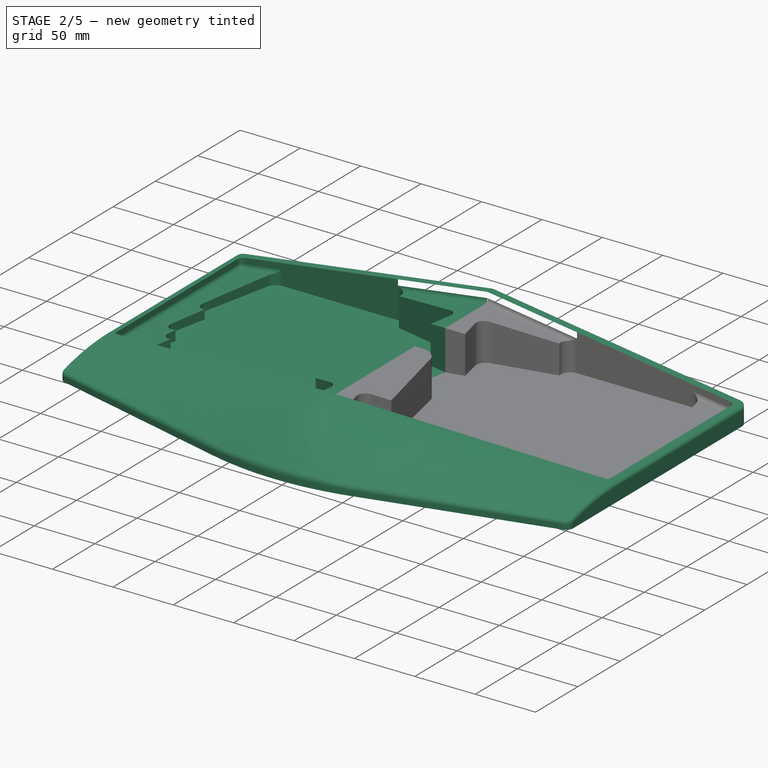
[diagram: stage 2 of 5 — iso view after this stage's code; geometry added in this stage tinted green]
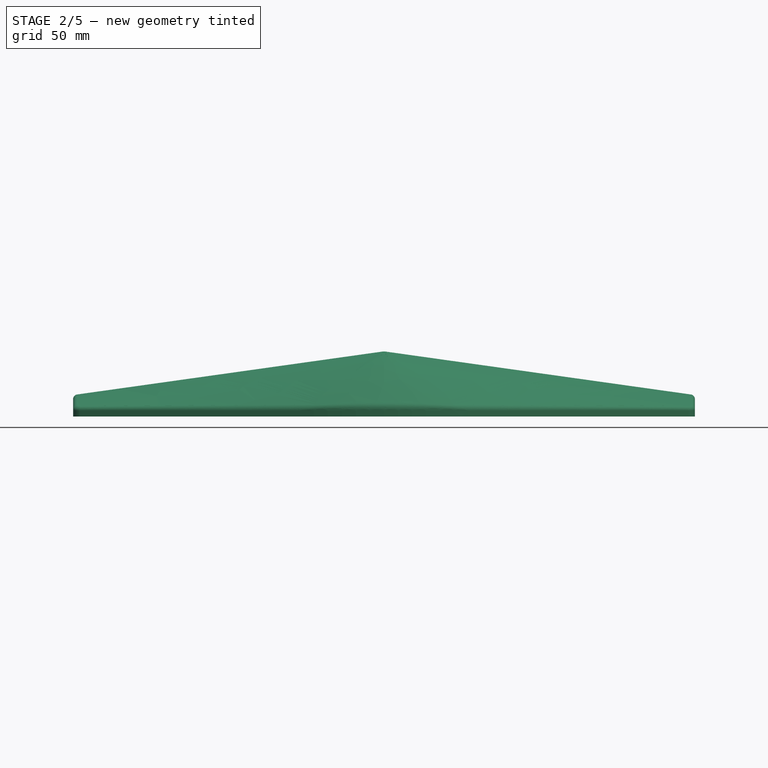
[diagram: stage 2 of 5 — front view after this stage's code; geometry added in this stage tinted green]
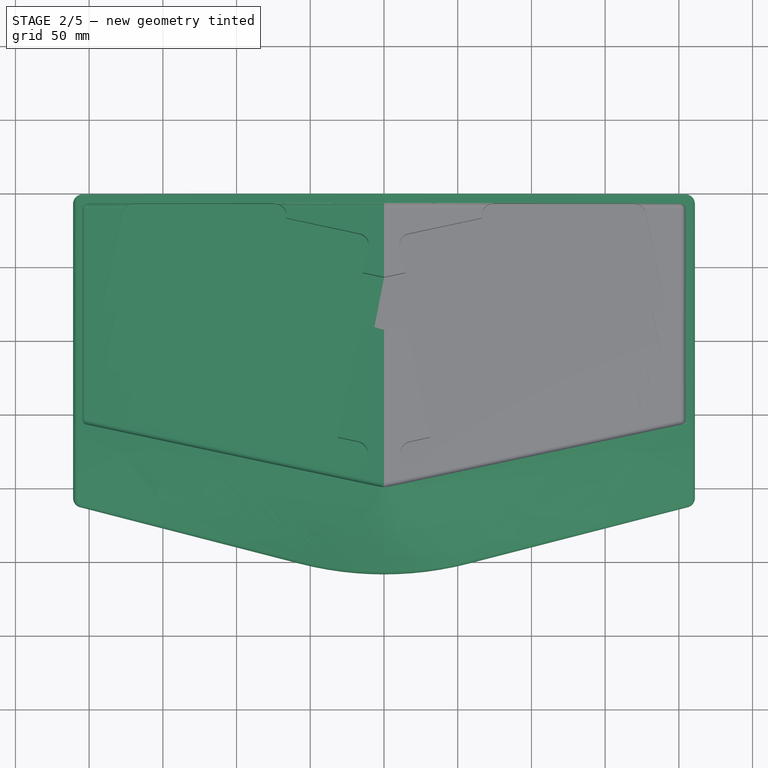
[diagram: stage 2 of 5 — top view after this stage's code; geometry added in this stage tinted green]
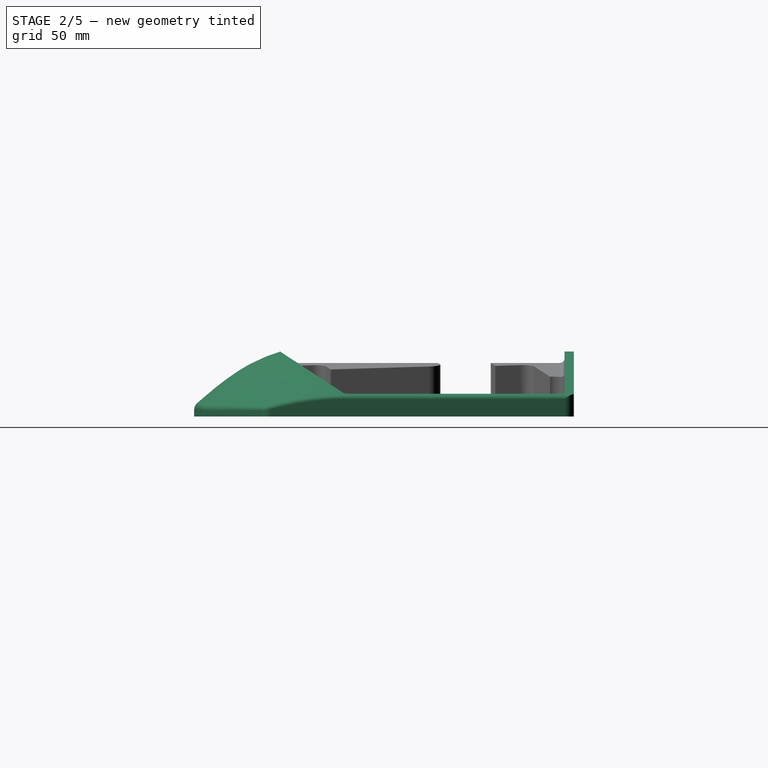
[diagram: stage 2 of 5 — right view after this stage's code; geometry added in this stage tinted green]
FEATURE [Sketcher::SketchObject] Sketch004  label="Margins"
  AttachmentOffset = pos=(0,0,-9.3) rot=(0,0,1;0rad)
  ExternalGeometry = -> [Extrude003,Extrude002,Sketch002]
  MapMode = 5
  Placement = pos=(41.0729,-2e-15,38.4155) rot=(0,1,0;0.139626rad)
  Support = -> [Extrude]
  expr: Constraints[5] = Spreadsheet.ComponentsToPalmRest
  expr: .AttachmentOffset.Base.z = -Spreadsheet.JCapHeight
  expr: Constraints[4] = Spreadsheet.ComponentsToSide
  expr: Constraints[3] = Spreadsheet.ComponentsToBack
  sketch-geometry (4):
    g0: LineSegment StartX=56.8808 StartY=86.6819 StartZ=0 EndX=56.8808 EndY=93.0319 EndZ=0
    g1: LineSegment StartX=-15.3667 StartY=-88.05 StartZ=0 EndX=-14.0464 EndY=-94.2613 EndZ=0
    g2: LineSegment StartX=152.337 StartY=-52.4036 StartZ=0 EndX=165.037 EndY=-52.4036 EndZ=0
    g3: LineSegment StartX=101.094 StartY=-63.2955 StartZ=0 EndX=102.414 EndY=-69.5068 EndZ=0
  constraints (13):
    c: Coincident(g0,g-3)
    c: Vertical(g0)
    c: Horizontal(g2)
    c: DistanceY(g0,g0) = 6.35
    c: DistanceX(g2,g2) = 12.7
    c: Distance(g1) = 6.35
    c: Coincident(g-4,g1)
    c: Perpendicular(g1,g-4)
    c: Coincident(g2,g-6)
    c: Coincident(g3,g-4)
    c: Equal(g1,g3)
    c: Equal(g3,g1)
    c: Parallel(g1,g3)
FEATURE [Sketcher::SketchObject] Sketch005  label="Hole Volume Above"
  ExternalGeometry = -> [Sketch004]
  sketch-geometry (4):
    g0: LineSegment StartX=0 StartY=93.0319 StartZ=0 EndX=0 EndY=-100.092 EndZ=0
    g1: LineSegment StartX=0 StartY=-100.092 StartZ=0 EndX=204.503 EndY=-56.1959 EndZ=0
    g2: LineSegment StartX=204.503 StartY=-56.1959 StartZ=0 EndX=204.503 EndY=93.0319 EndZ=0
    g3: LineSegment StartX=204.503 StartY=93.0319 StartZ=0 EndX=0 EndY=93.0319 EndZ=0
  constraints (12):
    c: PointOnObject(g0,g-2)
    c: PointOnObject(g0,g-2)
    c: Coincident(g0,g1)
    c: Coincident(g1,g2)
    c: Vertical(g2)
    c: Coincident(g2,g3)
    c: Coincident(g3,g0)
    c: Horizontal(g3)
    c: PointOnObject(g-4,g3)
    c: PointOnObject(g-3,g2)
    c: PointOnObject(g-5,g1)
    c: PointOnObject(g-6,g1)
FEATURE [Sketcher::SketchObject] Sketch006  label="Hole Top Plane"
  AttachmentOffset = pos=(0,0,-9.3) rot=(0,0,1;0rad)
  MapMode = 5
  Placement = pos=(41.0729,-2e-15,38.4155) rot=(0,1,0;0.139626rad)
  Support = -> [Extrude]
  expr: .AttachmentOffset.Base.z = -Spreadsheet.JCapHeight
  sketch-geometry (4):
    g0: LineSegment StartX=-228.6 StartY=-152.4 StartZ=0 EndX=228.6 EndY=-152.4 EndZ=0
    g1: LineSegment StartX=228.6 StartY=-152.4 StartZ=0 EndX=228.6 EndY=152.4 EndZ=0
    g2: LineSegment StartX=228.6 StartY=152.4 StartZ=0 EndX=-228.6 EndY=152.4 EndZ=0
    g3: LineSegment StartX=-228.6 StartY=152.4 StartZ=0 EndX=-228.6 EndY=-152.4 EndZ=0
  constraints (10):
    c: Coincident(g0,g1)
    c: Coincident(g1,g2)
    c: Coincident(g2,g3)
    c: Coincident(g3,g0)
    c: Horizontal(g0)
    c: Vertical(g1)
    c: DistanceY(g3,g3) = 304.8
    c: DistanceX(g2,g2) = 457.2
    c: Symmetric(g2,g0,g-1)
    c: Symmetric(g2,g1,g-2)
FEATURE [Part::Extrusion] Extrude004  label="Hole Volume 2.5D Limits"
  Base = -> Sketch005
  Dir = (0,0,1)
  DirMode = 2
  FaceMakerClass = Part::FaceMakerBullseye
  LengthFwd = 304.8
  LengthRev = 0
  Solid = true
  Symmetric = true
FEATURE [Part::MultiCommon] Common  label="Shallow Hole Volume"
  Shapes = -> [Extrude004,Extrude005]
FEATURE [Sketcher::SketchObject] Sketch008  label="Inner Wall"
  ExternalGeometry = -> [Common]
  Placement = pos=(0,0,0) rot=(0.57735,0.57735,0.57735;2.0944rad)
  expr: Constraints[21] = Spreadsheet.NoseInnerBulge
  expr: Constraints[5] = Spreadsheet.PalmrestInnerAngle
  expr: Constraints[8] = Spreadsheet.BackThickness
  expr: Constraints[14] = Spreadsheet.FrontCutHeight
  sketch-geometry (7):
    g0: LineSegment StartX=99.3819 StartY=44.1879 StartZ=0 EndX=-100.092 EndY=44.1879 EndZ=0
    g1: LineSegment [constr] StartX=-100.092 StartY=44.1879 StartZ=0 EndX=-165.629 EndY=6.35 EndZ=0
    g2: LineSegment StartX=-165.629 StartY=0 StartZ=0 EndX=99.3819 EndY=0 EndZ=0
    g3: LineSegment StartX=99.3819 StartY=0 StartZ=0 EndX=99.3819 EndY=44.1879 EndZ=0
    g4: LineSegment StartX=-165.629 StartY=6.35 StartZ=0 EndX=-165.629 EndY=0 EndZ=0
    g5: ArcOfCircle CenterX=-59.9004 CenterY=-101.101 CenterZ=0 NormalX=0 NormalY=0 NormalZ=1 AngleXU=0 Radius=150.746 StartAngle=1.84068 EndAngle=2.34811
    g6: LineSegment [constr] StartX=-135.273 StartY=29.4484 StartZ=0 EndX=-132.86 EndY=25.269 EndZ=0
  constraints (22):
    c: Coincident(g0,g1)
    c: PointOnObject(g2,g-1)
    c: Coincident(g2,g3)
    c: Coincident(g3,g0)
    c: Vertical(g3)
    c: Angle(g2,g1) = 0.523599
    c: Coincident(g0,g-3)
    c: Parallel(g0,g-3)
    c: DistanceX(g-3,g0) = 6.35
    c: Distance(g1) = 75.6759
    c: PointOnObject(g2,g-1)
    c: Coincident(g4,g1)
    c: Coincident(g4,g2)
    c: Vertical(g4)
    c: DistanceY(g4,g4) = 6.35
    c: Coincident(g5,g4)
    c: Coincident(g5,g0)
    c: PointOnObject(g6,g5)
    c: PointOnObject(g6,g1)
    c: Perpendicular(g6,g1)
    c: Perpendicular(g5,g6)
    c: Distance(g6) = 4.826
FEATURE [Sketcher::SketchObject] Sketch009  label="Back Wall"
  AttachmentOffset = pos=(0,0,6.35) rot=(0,0,1;0rad)
  ExternalGeometry = -> [Common,Sketch008]
  MapMode = 5
  Placement = pos=(0,99.3819,-1.4e-15) rot=(0,0.707107,0.707107;3.14159rad)
  Support = -> [Common]
  expr: Constraints[6] = Spreadsheet.EnclosureThickness
  expr: .AttachmentOffset.Base.z = Spreadsheet.BackThickness
  sketch-geometry (4):
    g0: LineSegment StartX=-210.853 StartY=0 StartZ=0 EndX=0 EndY=0 EndZ=0
    g1: LineSegment StartX=0 StartY=0 StartZ=0 EndX=0 EndY=44.1879 EndZ=0
    g2: LineSegment StartX=-210.853 StartY=0 StartZ=0 EndX=-210.853 EndY=14.5544 EndZ=0
    g3: LineSegment StartX=0 StartY=44.1879 StartZ=0 EndX=-210.853 EndY=14.5544 EndZ=0
  constraints (11):
    c: Coincident(g0,g1)
    c: Vertical(g1)
    c: Horizontal(g0)
    c: PointOnObject(g0,g-1)
    c: Coincident(g2,g0)
    c: Vertical(g2)
    c: DistanceX(g2,g-3) = 6.35
    c: Coincident(g3,g-4)
    c: Coincident(g3,g2)
    c: Parallel(g3,g-3)
    c: Coincident(g1,g3)
FEATURE [Sketcher::SketchObject] Sketch011  label="Top Wall"
  ExternalGeometry = -> [Common,Sketch009]
  MapMode = 5
  Placement = pos=(6.08992,9e-15,43.332) rot=(0,1,0;0.139626rad)
  Support = -> [Common]
  sketch-geometry (4):
    g0: LineSegment StartX=-6.14977 StartY=99.3819 StartZ=0 EndX=206.776 EndY=99.3819 EndZ=0
    g1: LineSegment StartX=206.776 StartY=99.3819 StartZ=0 EndX=206.776 EndY=-54.833 EndZ=0
    g2: LineSegment StartX=206.776 StartY=-54.833 StartZ=0 EndX=-6.14977 EndY=-100.092 EndZ=0
    g3: LineSegment StartX=-6.14977 StartY=-100.092 StartZ=0 EndX=-6.14977 EndY=99.3819 EndZ=0
  constraints (9):
    c: Coincident(g0,g1)
    c: Vertical(g1)
    c: Coincident(g1,g2)
    c: Coincident(g2,g-3)
    c: Coincident(g2,g3)
    c: Coincident(g3,g0)
    c: Parallel(g2,g-3)
    c: Coincident(g0,g-4)
    c: Coincident(g0,g-4)
FEATURE [Sketcher::SketchObject] Sketch012  label="Outer Wall"
  AttachmentOffset = pos=(0,0,6.35) rot=(0,0,1;0rad)
  ExternalGeometry = -> [Sketch011]
  MapMode = 5
  Placement = pos=(210.853,0,0) rot=(0.57735,0.57735,0.57735;2.0944rad)
  Support = -> [Common]
  expr: Constraints[7] = Spreadsheet.PalmrestOuterAngle
  expr: .AttachmentOffset.Base.z = Spreadsheet.EnclosureThickness
  expr: Constraints[13] = Spreadsheet.FrontCutHeight
  sketch-geometry (6):
    g0: LineSegment StartX=99.3819 StartY=14.5544 StartZ=0 EndX=-54.833 EndY=14.5544 EndZ=0
    g1: LineSegment [constr] StartX=-54.833 StartY=14.5544 StartZ=0 EndX=-111.418 EndY=6.35 EndZ=0
    g2: LineSegment StartX=-111.418 StartY=0 StartZ=0 EndX=99.3819 EndY=0 EndZ=0
    g3: LineSegment StartX=99.3819 StartY=0 StartZ=0 EndX=99.3819 EndY=14.5544 EndZ=0
    g4: LineSegment StartX=-111.418 StartY=6.35 StartZ=0 EndX=-111.418 EndY=0 EndZ=0
    g5: ArcOfCircle CenterX=-54.833 CenterY=-184.677 CenterZ=0 NormalX=0 NormalY=0 NormalZ=1 AngleXU=0 Radius=199.231 StartAngle=1.5708 EndAngle=1.85878
  constraints (17):
    c: Coincident(g-3,g0)
    c: Coincident(g0,g-3)
    c: Coincident(g0,g1)
    c: PointOnObject(g2,g-1)
    c: Coincident(g2,g3)
    c: Coincident(g3,g0)
    c: Vertical(g3)
    c: Angle(g2,g1) = 0.14399
    c: Distance(g1) = 57.1764
    c: PointOnObject(g2,g-1)
    c: Coincident(g4,g1)
    c: Coincident(g4,g2)
    c: Vertical(g4)
    c: DistanceY(g4,g4) = 6.35
    c: Coincident(g5,g0)
    c: Coincident(g5,g4)
    c: Tangent(g0,g5)
FEATURE [Part::Loft] Loft  label="Enclosure Extents"
  Closed = false
  MaxDegree = 5
  Ruled = false
  Sections = -> [Sketch008,Sketch012]
  Solid = true
FEATURE [Sketcher::SketchObject] Sketch028  label="Nose Cut Footprint"
  ExternalGeometry = -> [Sketch011]
  expr: Constraints[11] = Spreadsheet.NoseCutOffset
  sketch-geometry (4):
    g0: LineSegment StartX=0 StartY=-180.018 StartZ=0 EndX=210.853 EndY=-180.018 EndZ=0
    g1: LineSegment StartX=210.853 StartY=-180.018 StartZ=0 EndX=210.853 EndY=-390.872 EndZ=0
    g2: LineSegment StartX=210.853 StartY=-390.872 StartZ=0 EndX=0 EndY=-390.872 EndZ=0
    g3: LineSegment StartX=0 StartY=-390.872 StartZ=0 EndX=0 EndY=-180.018 EndZ=0
  constraints (12):
    c: Coincident(g0,g1)
    c: Coincident(g1,g2)
    c: Coincident(g2,g3)
    c: Coincident(g3,g0)
    c: Horizontal(g0)
    c: Horizontal(g2)
    c: Vertical(g1)
    c: Vertical(g3)
    c: PointOnObject(g0,g-2)
    c: PointOnObject(g0,g-4)
    c: Equal(g0,g3)
    c: DistanceY(g0,g-3) = 279.4
FEATURE [Part::Extrusion] Extrude023  label="Nose Cut"
  Base = -> Sketch028
  Dir = (0,0,1)
  DirMode = 2
  FaceMakerClass = Part::FaceMakerBullseye
  LengthFwd = 50.8
  LengthRev = 0
  Solid = true
  Symmetric = false
FEATURE [Part::Cut] Cut014  label="Enclosure w/ Nose Cut"
  Base = -> Loft
  Tool = -> Extrude023
FEATURE [Part::MultiFuse] Fusion  label="Right Hole"
  Shapes = -> [Common001,Cut]
FEATURE [Part::Cut] Cut015  label="Enclosure Right Side"
  Base = -> Cut014
  Tool = -> Fusion
FEATURE [Part::Mirroring] Part__Mirroring  label="Enclosure Left Side"
  Base = (0,0,0)
  Normal = (1,0,0)
  Source = -> Cut015
FEATURE [Part::MultiFuse] Fusion006  label="Enclosure Rough"
  Shapes = -> [Part__Mirroring,Cut015]
FEATURE [Part::Fillet] Fillet002  label="Enclosure Fillet"
  Base = -> Fusion006
  Edges = 16 edges: [Edge10 r=12.7,Edge12 r=6.35,Edge14 r=3.175,Edge15 r=6.35,Edge17 r1=12.7 r2=304.8,Edge18 r1=5.334 r2=3.175,Edge23 r=3.175,Edge31 r=3.175,Edge42 r=6.35,Edge46 r=228.6,Edge47 r1=5.334 r2=3.175,Edge48 r=3.175,Edge51 r=3.175,Edge85 r=3.175,Edge87 r=6.35,Edge92 r=3.175]
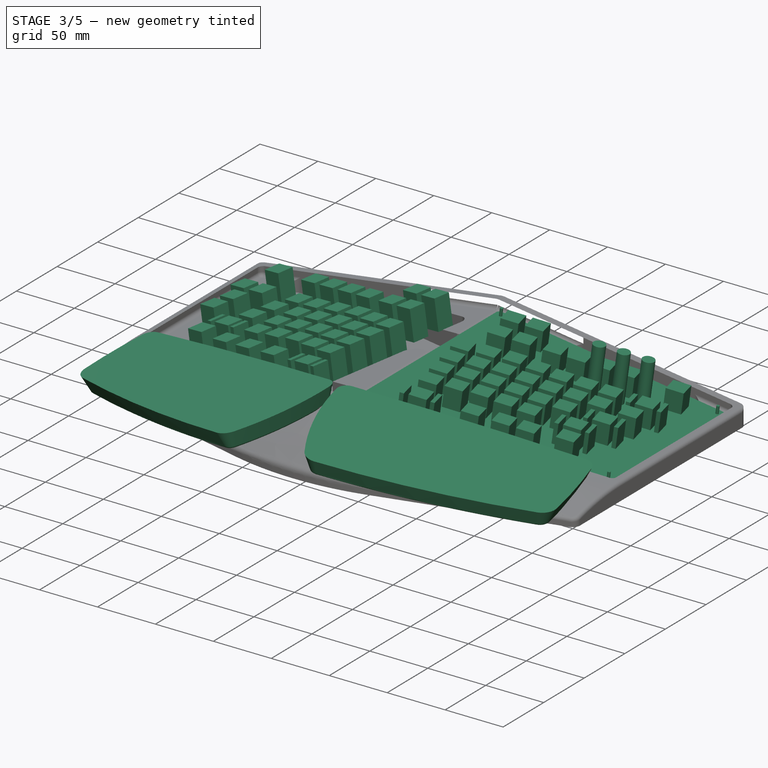
[diagram: stage 3 of 5 — iso view after this stage's code; geometry added in this stage tinted green]
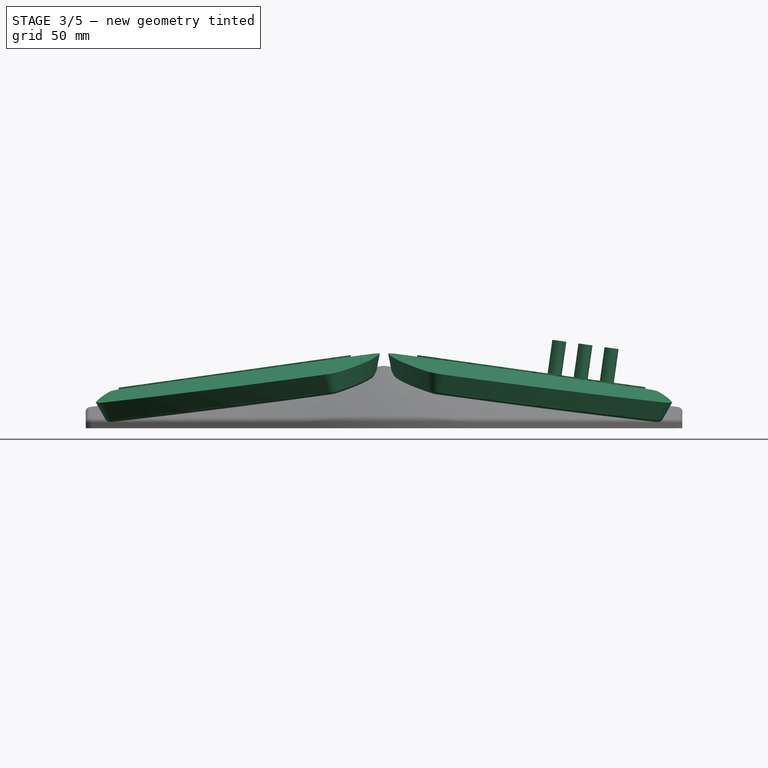
[diagram: stage 3 of 5 — front view after this stage's code; geometry added in this stage tinted green]
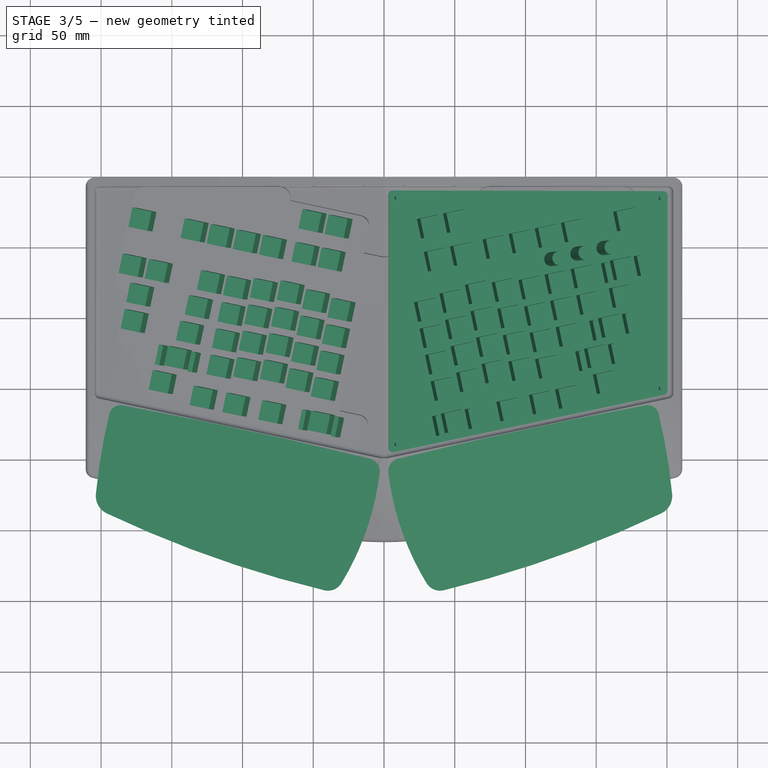
[diagram: stage 3 of 5 — top view after this stage's code; geometry added in this stage tinted green]
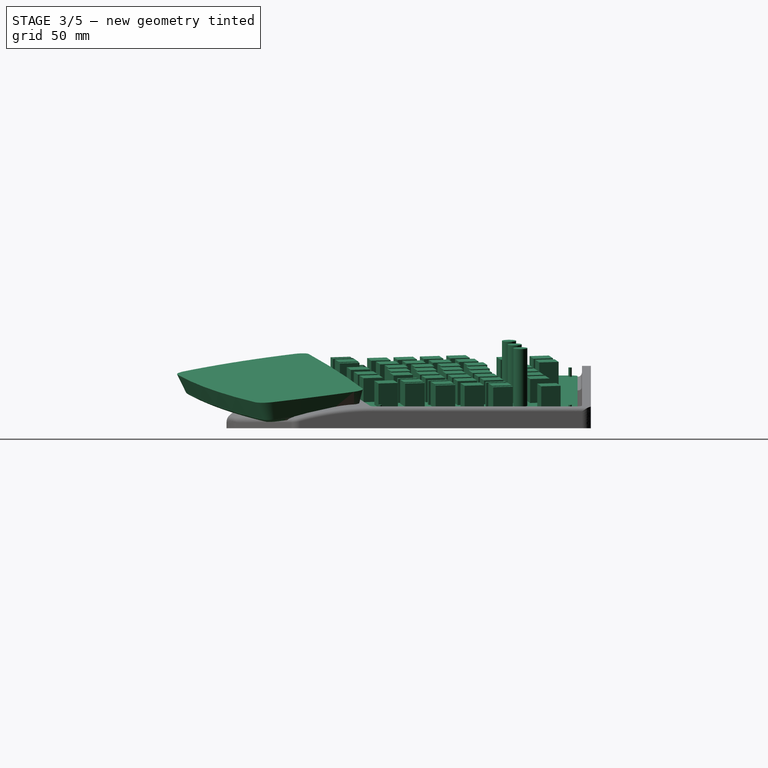
[diagram: stage 3 of 5 — right view after this stage's code; geometry added in this stage tinted green]
FEATURE [Sketcher::SketchObject] Sketch018  label="Screw Hole Footprints"
  AttachmentOffset = pos=(0,0,-17.1) rot=(0,0,1;0rad)
  ExternalGeometry = -> [Sketch016]
  MapMode = 5
  Placement = pos=(39.9873,-3.8e-15,30.6914) rot=(0,1,0;0.139626rad)
  Support = -> [Extrude]
  expr: .AttachmentOffset.Base.z = -(Spreadsheet.JCapHeight + Spreadsheet.SwitchAbovePlate + Spreadsheet.PlateThickness)
  sketch-geometry (4):
    g0: Circle CenterX=-31.9983 CenterY=84.6499 CenterZ=0 NormalX=0 NormalY=0 NormalZ=1 AngleXU=0 Radius=1.2
    g1: Circle CenterX=-31.9983 CenterY=-89.695 CenterZ=0 NormalX=0 NormalY=0 NormalZ=1 AngleXU=0 Radius=1.2
    g2: Circle CenterX=156.655 CenterY=-49.5956 CenterZ=0 NormalX=0 NormalY=0 NormalZ=1 AngleXU=0 Radius=1.2
    g3: Circle CenterX=156.655 CenterY=84.6499 CenterZ=0 NormalX=0 NormalY=0 NormalZ=1 AngleXU=0 Radius=1.2
  constraints (8):
    c: Coincident(g0,g-3)
    c: Equal(g0,g-3)
    c: Coincident(g1,g-4)
    c: Coincident(g2,g-5)
    c: Coincident(g3,g-6)
    c: Equal(g2,g3)
    c: Equal(g3,g1)
    c: Equal(g1,g0)
FEATURE [Part::Extrusion] Extrude009  label="Screw Hole Cuts"
  Base = -> Sketch018
  Dir = (0.139173,2e-16,0.990268)
  DirMode = 2
  FaceMakerClass = Part::FaceMakerBullseye
  LengthFwd = 7.8
  LengthRev = 0
  Solid = true
  Symmetric = false
  expr: LengthFwd = Spreadsheet.SwitchAbovePlate + Spreadsheet.PlateThickness
FEATURE [Sketcher::SketchObject] Sketch019  label="Right Plate Footprint"
  AttachmentOffset = pos=(0,0,-17.1) rot=(0,0,1;0rad)
  ExternalGeometry = -> [Common]
  MapMode = 5
  Placement = pos=(39.9873,-3.8e-15,30.6914) rot=(0,1,0;0.139626rad)
  Support = -> [Extrude]
  expr: Constraints[19] = Spreadsheet.PlateCornerRadius
  expr: Constraints[18] = Spreadsheet.PlateCornerRadius
  expr: Constraints[17] = Spreadsheet.PlateCornerRadius
  expr: Constraints[30] = Spreadsheet.PlateClearance
  expr: Constraints[16] = Spreadsheet.PlateCornerRadius
  expr: .AttachmentOffset.Base.z = -(Spreadsheet.JCapHeight + Spreadsheet.SwitchAbovePlate + Spreadsheet.PlateThickness)
  sketch-geometry (12):
    g0: LineSegment StartX=-37.2053 StartY=86.6819 StartZ=0 EndX=-37.2053 EndY=-92.0171 EndZ=0
    g1: LineSegment StartX=-33.3702 StartY=-95.1227 StartZ=0 EndX=159.347 EndY=-54.1594 EndZ=0
    g2: LineSegment StartX=161.862 StartY=-51.0538 StartZ=0 EndX=161.862 EndY=86.6819 EndZ=0
    g3: LineSegment StartX=158.687 StartY=89.8569 StartZ=0 EndX=-34.0303 EndY=89.8569 EndZ=0
    g4: ArcOfCircle CenterX=-34.0303 CenterY=86.6819 CenterZ=0 NormalX=0 NormalY=0 NormalZ=1 AngleXU=0 Radius=3.175 StartAngle=1.5708 EndAngle=3.14159
    g5: ArcOfCircle CenterX=158.687 CenterY=86.6819 CenterZ=0 NormalX=0 NormalY=0 NormalZ=1 AngleXU=0 Radius=3.175 StartAngle=1.40598e-07 EndAngle=1.5708
    g6: ArcOfCircle CenterX=158.687 CenterY=-51.0538 CenterZ=0 NormalX=0 NormalY=0 NormalZ=1 AngleXU=0 Radius=3.175 StartAngle=4.92183 EndAngle=6.28319
    g7: ArcOfCircle CenterX=-34.0303 CenterY=-92.0171 CenterZ=0 NormalX=0 NormalY=0 NormalZ=1 AngleXU=0 Radius=3.175 StartAngle=3.14159 EndAngle=4.92183
    g8: LineSegment [constr] StartX=-34.0303 StartY=89.8569 StartZ=0 EndX=-34.0303 EndY=93.0319 EndZ=0
    g9: LineSegment [constr] StartX=-37.2053 StartY=86.6819 StartZ=0 EndX=-40.3803 EndY=86.6819 EndZ=0
    g10: LineSegment [constr] StartX=161.862 StartY=86.6819 StartZ=0 EndX=165.037 EndY=86.6819 EndZ=0
    g11: LineSegment [constr] StartX=159.347 StartY=-54.1594 StartZ=0 EndX=160.007 EndY=-57.2651 EndZ=0
  constraints (40):
    c: Coincident(g4,g0)
    c: Coincident(g4,g3)
    c: Coincident(g5,g3)
    c: Coincident(g5,g2)
    c: Coincident(g6,g1)
    c: Coincident(g6,g2)
    c: Coincident(g7,g0)
    c: Coincident(g7,g1)
    c: Tangent(g0,g4)
    c: Tangent(g4,g3)
    c: Tangent(g3,g5)
    c: Tangent(g5,g2)
    c: Tangent(g2,g6)
    c: Tangent(g6,g1)
    c: Tangent(g1,g7)
    c: Tangent(g7,g0)
    c: Distance(g0,g4) = 3.175
    c: Distance(g5,g2) = 3.175
    c: Distance(g6,g2) = 3.175
    c: Distance(g7,g0) = 3.175
    c: Coincident(g8,g3)
    c: Vertical(g8)
    c: Coincident(g9,g0)
    c: Horizontal(g9)
    c: Coincident(g10,g2)
    c: Horizontal(g10)
    c: Coincident(g11,g1)
    c: Equal(g9,g8)
    c: Equal(g8,g10)
    c: Equal(g10,g11)
    c: Distance(g9) = 3.175
    c: PointOnObject(g9,g-3)
    c: PointOnObject(g8,g-6)
    c: PointOnObject(g10,g-5)
    c: PointOnObject(g11,g-4)
    c: Parallel(g3,g-6)
    c: Parallel(g2,g-5)
    c: Parallel(g1,g-4)
    c: Parallel(g0,g-3)
    c: Perpendicular(g11,g-4)
FEATURE [Part::Extrusion] Extrude010  label="Right Plate Solid"
  Base = -> Sketch019
  Dir = (0.139173,2e-16,0.990268)
  DirMode = 2
  FaceMakerClass = Part::FaceMakerBullseye
  LengthFwd = 1.4
  LengthRev = 0
  Solid = true
  Symmetric = false
  expr: LengthFwd = Spreadsheet.PlateThickness
FEATURE [Part::Extrusion] Extrude022  label="Right Palm Pad Cut Solid"
  Base = -> Sketch027
  Dir = (0.159354,-0.0992945,0.982215)
  DirMode = 2
  FaceMakerClass = Part::FaceMakerBullseye
  LengthFwd = 15.24
  LengthRev = 0
  Solid = true
  Symmetric = false
  TaperAngle = 20
  expr: LengthFwd = Spreadsheet.PalmPadHeight
FEATURE [Part::Fillet] Fillet  label="Right Palm Pad Cut"
  Base = -> Extrude022
  Edges = 1 edges r=3.175: [Edge5]
FEATURE [Part::Mirroring] Part__Mirroring009  label="Left Palm Pad Cut"
  Base = (0,0,0)
  Normal = (1,0,0)
  Source = -> Fillet
FEATURE [Sketcher::SketchObject] Sketch030  label="Plate LED Hole Footprint"
  ExternalGeometry = -> [Sketch022]
  MapMode = 5
  Placement = pos=(42.3672,0,47.625) rot=(0,1,0;0.139626rad)
  Support = -> [Extrude]
  sketch-geometry (3):
    g0: Circle CenterX=78.815 CenterY=41.5191 CenterZ=0 NormalX=0 NormalY=0 NormalZ=1 AngleXU=0 Radius=5
    g1: Circle CenterX=97.4487 CenterY=45.4798 CenterZ=0 NormalX=0 NormalY=0 NormalZ=1 AngleXU=0 Radius=5
    g2: Circle CenterX=116.082 CenterY=49.4405 CenterZ=0 NormalX=0 NormalY=0 NormalZ=1 AngleXU=0 Radius=5
  constraints (6):
    c: Coincident(g0,g-3)
    c: Coincident(g1,g-4)
    c: Coincident(g2,g-5)
    c: Equal(g0,g1)
    c: Equal(g0,g2)
    c: Diameter(g0) = 10
FEATURE [Part::Extrusion] Extrude025  label="Plate LED Holes"
  Base = -> Sketch030
  Dir = (0.139173,2e-16,0.990268)
  DirMode = 2
  FaceMakerClass = Part::FaceMakerBullseye
  LengthFwd = 50.8
  LengthRev = 0
  Solid = true
  Symmetric = true
FEATURE [Part::Feature] Compound001004  label="Right Plate Cuts Footprint"
  Placement = pos=(-187.975,93.9563,55.7616) rot=(2.6e-05,1,0.000374;0.139626rad)
  shape: bbox 161.3 x 161.7 x 22.67 mm, 0 faces, 0 solids (baked)
FEATURE [Part::Feature] Compound001005  label="Left Plate Cuts Footprint"
  Placement = pos=(-199.219,93.9768,1.34506) rot=(2.6e-05,-1,-0.000374;0.139626rad)
  shape: bbox 164.1 x 162.7 x 23.06 mm, 0 faces, 0 solids (baked)
FEATURE [Part::Extrusion] Extrude026  label="Right Plate Cuts"
  Base = -> Compound001004
  Dir = (0.139173,1.7e-15,0.990268)
  DirMode = 2
  FaceMakerClass = Part::FaceMakerBullseye
  LengthFwd = 25.4
  LengthRev = 0
  Solid = true
  Symmetric = false
FEATURE [Part::Extrusion] Extrude027  label="Left Plate Cuts"
  Base = -> Compound001005
  Dir = (-0.139173,3.4e-15,0.990268)
  DirMode = 2
  FaceMakerClass = Part::FaceMakerBullseye
  LengthFwd = 25.4
  LengthRev = 0
  Solid = true
  Symmetric = false
FEATURE [Sketcher::SketchObject] Sketch035  label="Drill Guides Sketch"
  expr: Constraints[11] = Spreadsheet.InsertDiameter
  sketch-geometry (11):
    g0: LineSegment StartX=-4.925 StartY=38.1 StartZ=0 EndX=-4.925 EndY=-38.1 EndZ=0
    g1: LineSegment StartX=-4.925 StartY=-38.1 StartZ=0 EndX=4.925 EndY=-38.1 EndZ=0
    g2: LineSegment StartX=4.925 StartY=-38.1 StartZ=0 EndX=4.925 EndY=38.1 EndZ=0
    g3: LineSegment StartX=4.925 StartY=38.1 StartZ=0 EndX=-4.925 EndY=38.1 EndZ=0
    g4: Circle CenterX=0 CenterY=33.175 CenterZ=0 NormalX=0 NormalY=0 NormalZ=1 AngleXU=0 Radius=1.75
    g5: Circle CenterX=0 CenterY=-33.175 CenterZ=0 NormalX=0 NormalY=0 NormalZ=1 AngleXU=0 Radius=1.75
    g6: GeomPoint X=0 Y=34.925 Z=0
    g7: GeomPoint X=0 Y=38.1 Z=0
    g8: GeomPoint X=-1.75 Y=33.175 Z=0
    g9: GeomPoint X=-4.925 Y=33.175 Z=0
    g10: LineSegment [constr] StartX=-1.75 StartY=33.175 StartZ=0 EndX=-4.925 EndY=33.175 EndZ=0
  constraints (25):
    c: Coincident(g0,g1)
    c: Horizontal(g1)
    c: Coincident(g1,g2)
    c: Vertical(g2)
    c: Coincident(g2,g3)
    c: Coincident(g3,g0)
    c: Symmetric(g2,g0,g-2)
    c: Symmetric(g0,g0,g-1)
    c: PointOnObject(g4,g-2)
    c: Symmetric(g4,g5,g-1)
    c: Equal(g5,g4)
    c: Diameter(g4) = 3.5
    c: PointOnObject(g6,g4)
    c: PointOnObject(g7,g3)
    c: PointOnObject(g7,g-2)
    c: PointOnObject(g6,g-2)
    c: DistanceY(g6,g7) = 3.175
    c: PointOnObject(g8,g4)
    c: PointOnObject(g9,g0)
    c: Distance(g9,g8) = 3.175
    c: Coincident(g10,g8)
    c: Coincident(g10,g9)
    c: Horizontal(g10)
    c: Perpendicular(g4,g10)
    c: DistanceY(g0,g0) = 76.2
FEATURE [Part::MultiFuse] Fusion005  label="Palm Pad Cuts"
  Shapes = -> [Part__Mirroring009,Fillet]
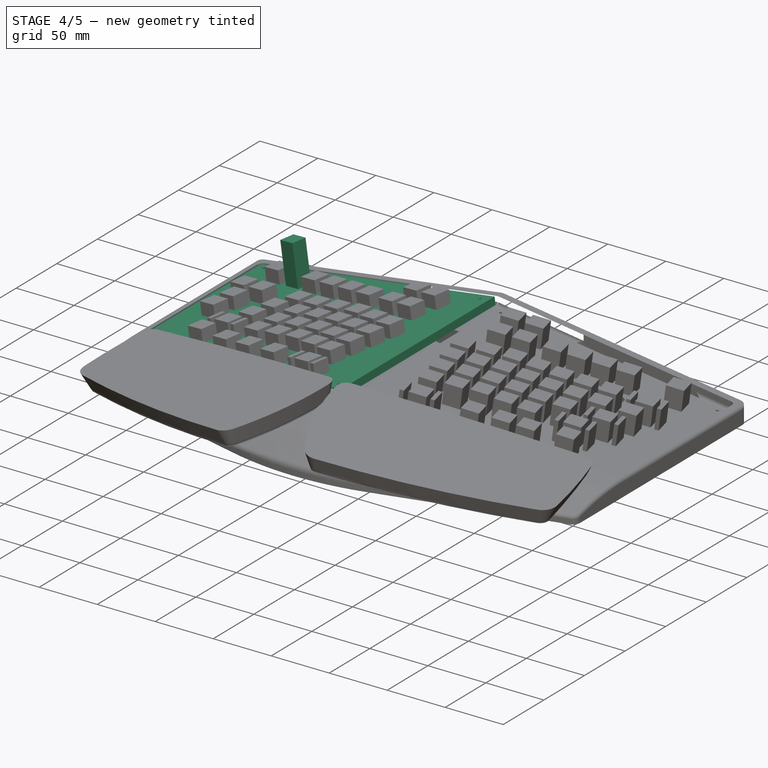
[diagram: stage 4 of 5 — iso view after this stage's code; geometry added in this stage tinted green]
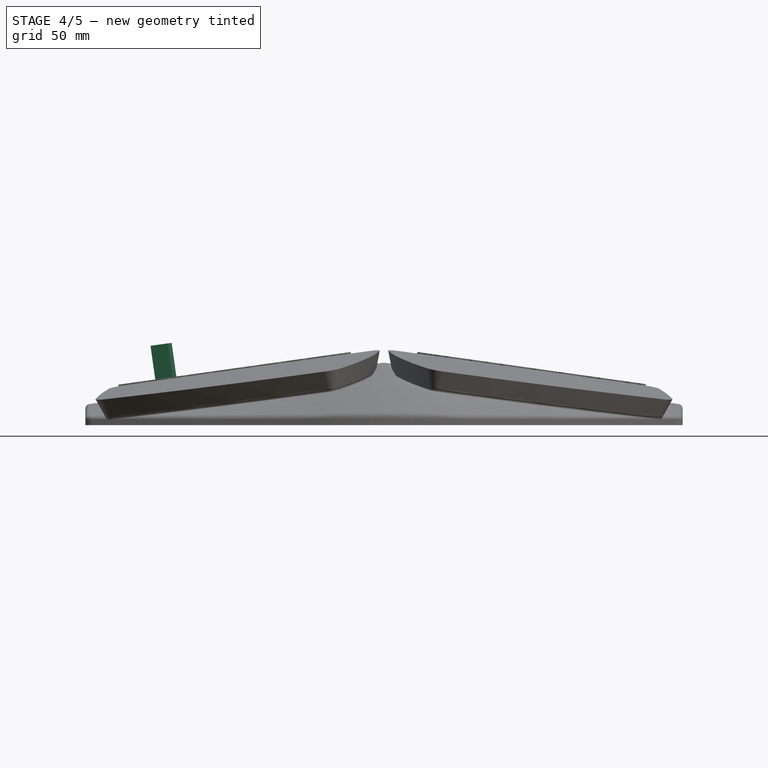
[diagram: stage 4 of 5 — front view after this stage's code; geometry added in this stage tinted green]
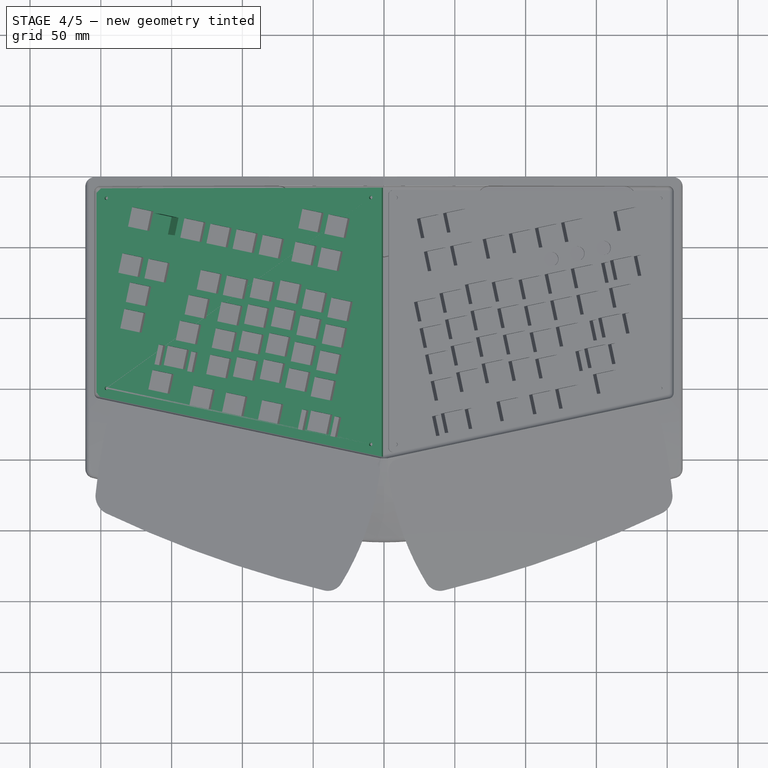
[diagram: stage 4 of 5 — top view after this stage's code; geometry added in this stage tinted green]
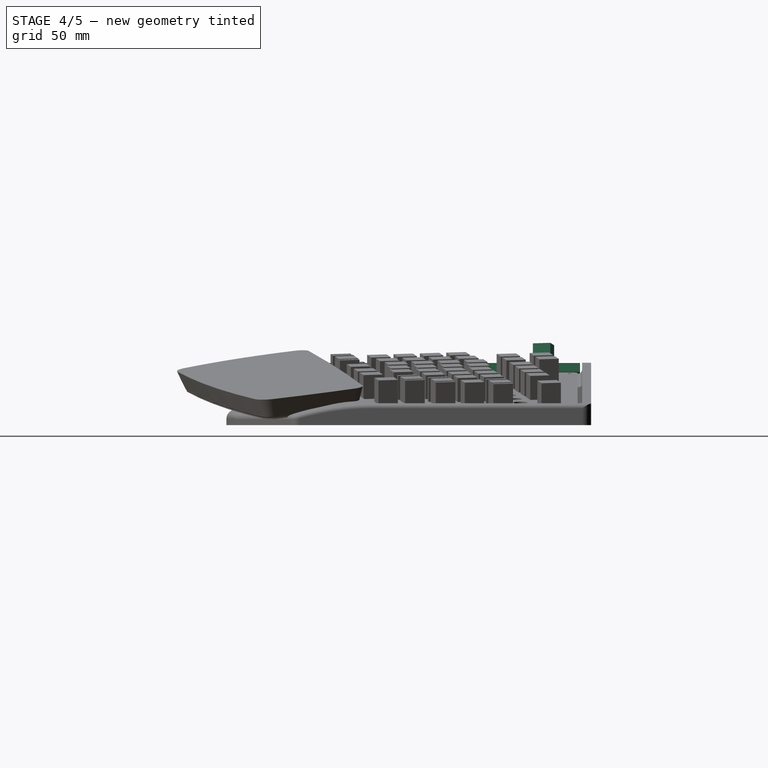
[diagram: stage 4 of 5 — right view after this stage's code; geometry added in this stage tinted green]
FEATURE [Part::Cut] Cut002  label="Right Plate Solid w/ Screw Holes"
  Base = -> Extrude010
  Tool = -> Extrude009
FEATURE [Sketcher::SketchObject] Sketch021  label="Right Top Footprint"
  AttachmentOffset = pos=(0,0,-15.7) rot=(0,0,1;0rad)
  ExternalGeometry = -> [Common]
  MapMode = 5
  Placement = pos=(40.1822,-3.5e-15,32.0778) rot=(0,1,0;0.139626rad)
  Support = -> [Extrude]
  expr: .AttachmentOffset.Base.z = -(Spreadsheet.JCapHeight + Spreadsheet.SwitchAbovePlate)
  expr: Constraints[5] = Spreadsheet.TopClearance
  expr: Constraints[14] = Spreadsheet.TopCornerRadius
  expr: Constraints[16] = Spreadsheet.TopInnerClearance
  sketch-geometry (12):
    g0: LineSegment StartX=-39.8265 StartY=91.5319 StartZ=0 EndX=-39.8265 EndY=-98.4405 EndZ=0
    g1: LineSegment StartX=-39.8265 StartY=91.5319 StartZ=0 EndX=160.362 EndY=91.5319 EndZ=0
    g2: LineSegment StartX=163.537 StartY=88.3569 StartZ=0 EndX=163.537 EndY=-52.6432 EndZ=0
    g3: LineSegment StartX=161.022 StartY=-55.7488 StartZ=0 EndX=-39.8265 EndY=-98.4405 EndZ=0
    g4: LineSegment [constr] StartX=-39.8265 StartY=91.5319 StartZ=0 EndX=-39.8265 EndY=93.0319 EndZ=0
    g5: LineSegment [constr] StartX=-39.8265 StartY=91.5319 StartZ=0 EndX=-41.4765 EndY=91.5319 EndZ=0
    g6: LineSegment [constr] StartX=-39.8265 StartY=-98.4405 StartZ=0 EndX=-39.5147 EndY=-99.9077 EndZ=0
    g7: ArcOfCircle [constr] CenterX=160.362 CenterY=88.3569 CenterZ=0 NormalX=0 NormalY=0 NormalZ=1 AngleXU=0 Radius=3.175 StartAngle=1.16779e-06 EndAngle=1.5708
    g8: ArcOfCircle [constr] CenterX=160.362 CenterY=-52.6432 CenterZ=0 NormalX=0 NormalY=0 NormalZ=1 AngleXU=0 Radius=3.175 StartAngle=4.92182 EndAngle=6.28319
    g9: LineSegment StartX=160.362 StartY=91.5319 StartZ=0 EndX=163.537 EndY=88.3569 EndZ=0
    g10: LineSegment StartX=161.022 StartY=-55.7488 StartZ=0 EndX=163.537 EndY=-52.6432 EndZ=0
    g11: LineSegment [constr] StartX=163.537 StartY=88.3569 StartZ=0 EndX=165.037 EndY=88.3569 EndZ=0
  constraints (36):
    c: Coincident(g1,g0)
    c: Coincident(g3,g0)
    c: Coincident(g4,g0)
    c: Coincident(g5,g0)
    c: Coincident(g6,g0)
    c: Distance(g4) = 1.5
    c: Coincident(g7,g1)
    c: Coincident(g7,g2)
    c: Coincident(g8,g3)
    c: Coincident(g8,g2)
    c: Tangent(g2,g8)
    c: Tangent(g8,g3)
    c: Tangent(g1,g7)
    c: Tangent(g7,g2)
    c: Diameter(g7) = 6.35
    c: Equal(g8,g7)
    c: Distance(g5) = 1.65
    c: Coincident(g9,g1)
    c: Coincident(g9,g2)
    c: Coincident(g10,g3)
    c: Coincident(g10,g2)
    c: PointOnObject(g5,g-3)
    c: PointOnObject(g6,g-5)
    c: Perpendicular(g-5,g6)
    c: Parallel(g0,g-3)
    c: Parallel(g-4,g2)
    c: Parallel(g-5,g3)
    c: Perpendicular(g5,g-3)
    c: Parallel(g-6,g1)
    c: PointOnObject(g4,g-6)
    c: Perpendicular(g1,g4)
    c: Coincident(g11,g2)
    c: PointOnObject(g11,g-4)
    c: Horizontal(g11)
    c: Equal(g4,g11)
    c: Equal(g6,g4)
FEATURE [Part::Extrusion] Extrude012  label="Right Top Solid"
  Base = -> Sketch021
  Dir = (0.139173,2e-16,0.990268)
  DirMode = 2
  FaceMakerClass = Part::FaceMakerBullseye
  LengthFwd = 6.35
  LengthRev = 0
  Solid = true
  Symmetric = false
  expr: LengthFwd = Spreadsheet.TopHeight
FEATURE [Part::Cut] Cut004  label="Right Top Solid w/ Screw Holes"
  Base = -> Extrude012
  Tool = -> Extrude009
FEATURE [Part::Mirroring] Part__Mirroring002  label="Left Top Solid w/ Screw Holes"
  Base = (0,0,0)
  Normal = (1,0,0)
  Source = -> Cut004
FEATURE [Part::Mirroring] Part__Mirroring005  label="Left Key Footprints"
  Base = (0,0,0)
  Normal = (1,0,0)
  Source = -> Sketch002
FEATURE [Part::Mirroring] Part__Mirroring006  label="Left Tent and Tilt Reference Plane"
  Base = (0,0,0)
  Normal = (1,0,0)
  Source = -> Extrude
FEATURE [Sketcher::SketchObject] Sketch024  label="Reset Switch Footprint"
  ExternalGeometry = -> [Part__Mirroring005]
  MapMode = 5
  Placement = pos=(-7.38423,1.17e-14,52.5415) rot=(0,-1,0;0.139626rad)
  Support = -> [Part__Mirroring006]
  expr: Constraints[7] = Spreadsheet.ResetSwitchSide
  sketch-geometry (6):
    g0: LineSegment StartX=-152.835 StartY=73.2765 StartZ=0 EndX=-140.412 EndY=70.636 EndZ=0
    g1: LineSegment StartX=-140.412 StartY=70.636 StartZ=0 EndX=-143.053 EndY=58.2136 EndZ=0
    g2: LineSegment StartX=-143.053 StartY=58.2136 StartZ=0 EndX=-155.475 EndY=60.854 EndZ=0
    g3: LineSegment StartX=-155.475 StartY=60.854 StartZ=0 EndX=-152.835 EndY=73.2765 EndZ=0
    g4: LineSegment [constr] StartX=-175.894 StartY=71.6861 StartZ=0 EndX=-147.944 EndY=65.745 EndZ=0
    g5: LineSegment [constr] StartX=-147.944 StartY=65.745 StartZ=0 EndX=-145.963 EndY=75.0619 EndZ=0
  constraints (17):
    c: Coincident(g0,g1)
    c: Coincident(g1,g2)
    c: Coincident(g2,g3)
    c: Coincident(g3,g0)
    c: Equal(g0,g1)
    c: Perpendicular(g1,g0)
    c: Perpendicular(g2,g1)
    c: Distance(g3) = 12.7
    c: PointOnObject(g4,g-4)
    c: Coincident(g5,g4)
    c: PointOnObject(g5,g-3)
    c: Parallel(g4,g-3)
    c: Parallel(g-4,g5)
    c: Distance(g4) = 28.575
    c: Distance(g5) = 9.525
    c: Symmetric(g0,g0,g5)
    c: Symmetric(g2,g0,g4)
FEATURE [Part::Extrusion] Extrude018  label="Reset Switch Hole"
  Base = -> Sketch024
  Dir = (-0.139173,2e-16,0.990268)
  DirMode = 2
  FaceMakerClass = Part::FaceMakerBullseye
  LengthFwd = 50.8
  LengthRev = 0
  Solid = true
  Symmetric = true
FEATURE [Sketcher::SketchObject] Sketch026  label="Palm Angle Sketch"
  MapMode = 7
  Placement = pos=(-5.33e-14,-100.092,44.1879) rot=(0.630945,-0.509887,-0.584742;1.88885rad)
  Support = -> [Sketch011]
  expr: Constraints[1] = Spreadsheet.PalmPadAngle
  sketch-geometry (1):
    g0: LineSegment StartX=0 StartY=0 StartZ=0 EndX=50.3654 EndY=-6.63073 EndZ=0
  constraints (3):
    c: Coincident(g0,g-1)
    c: Angle(g0,g-1) = 0.1309
    c: Distance(g0) = 50.8
FEATURE [Part::Extrusion] Extrude020  label="Palm Pad Reference Plane"
  Base = -> Sketch026
  Dir = (-0.968628,-0.207912,0.136132)
  DirMode = 2
  FaceMakerClass = Part::FaceMakerBullseye
  LengthFwd = 50.8
  LengthRev = 0
  Reversed = true
  Solid = false
  Symmetric = false
FEATURE [Sketcher::SketchObject] Sketch027  label="Palm Pad Footprint"
  AttachmentOffset = pos=(0,0,-5.55625) rot=(0,0,1;0rad)
  ExternalGeometry = -> [Sketch026,Extrude020]
  MapMode = 5
  Placement = pos=(7.61465,-4.74472,46.9345) rot=(0.079832,-0.050193,0.995544;3.14964rad)
  Support = -> [Extrude020]
  expr: Constraints[1] = Spreadsheet.PalmPadYOffset
  expr: Constraints[7] = Spreadsheet.PalmPadXOffset
  expr: .AttachmentOffset.Base.z = -Spreadsheet.PalmPadSink
  sketch-geometry (33):
    g0: LineSegment [constr] StartX=3.93728 StartY=94.2198 StartZ=0 EndX=2.71068 EndY=100.45 EndZ=0
    g1: LineSegment [constr] StartX=2.71068 StartY=100.45 StartZ=0 EndX=-0.432065 EndY=109.28 EndZ=0
    g2: LineSegment [constr] StartX=-9.50354 StartY=107.494 StartZ=0 EndX=-173.089 EndY=75.2887 EndZ=0
    g3: LineSegment [constr] StartX=2.71068 StartY=100.45 StartZ=0 EndX=7.38349 EndY=101.37 EndZ=0
    g4: LineSegment [constr] StartX=-0.432065 StartY=109.28 StartZ=0 EndX=-9.50354 EndY=107.494 EndZ=0
    g5: LineSegment [constr] StartX=-9.50354 StartY=107.494 StartZ=0 EndX=-6.36079 EndY=98.6643 EndZ=0
    g6: LineSegment [constr] StartX=-6.36079 StartY=98.6643 StartZ=0 EndX=2.71068 EndY=100.45 EndZ=0
    g7: LineSegment [constr] StartX=-32.3289 StartY=171.625 StartZ=0 EndX=-179.535 EndY=121.681 EndZ=0
    g8: LineSegment [constr] StartX=-179.535 StartY=121.681 StartZ=0 EndX=-173.089 EndY=75.2887 EndZ=0
    g9: LineSegment [constr] StartX=-9.50354 StartY=107.494 StartZ=0 EndX=-32.3289 EndY=171.625 EndZ=0
    g10: LineSegment [constr] StartX=-32.3289 StartY=171.625 StartZ=0 EndX=-23.1887 EndY=174.726 EndZ=0
    g11: LineSegment [constr] StartX=-32.3289 StartY=171.625 StartZ=0 EndX=-35.7357 EndY=181.197 EndZ=0
    g12: LineSegment [constr] StartX=-179.535 StartY=121.681 StartZ=0 EndX=-181.003 EndY=132.247 EndZ=0
    g13: LineSegment [constr] StartX=-179.535 StartY=121.681 StartZ=0 EndX=-189.878 EndY=118.171 EndZ=0
    g14: LineSegment [constr] StartX=-173.089 StartY=75.2887 StartZ=0 EndX=-182.31 EndY=73.4733 EndZ=0
    g15: LineSegment [constr] StartX=-173.089 StartY=75.2887 StartZ=0 EndX=-171.726 EndY=65.4769 EndZ=0
    g16: LineSegment [constr] StartX=-32.3289 StartY=171.625 StartZ=0 EndX=-19.3227 EndY=105.561 EndZ=0
    g17: LineSegment [constr] StartX=-26.5186 StartY=184.303 StartZ=0 EndX=-191.653 EndY=128.658 EndZ=0
    g18: LineSegment [constr] StartX=-191.653 StartY=128.658 StartZ=0 EndX=-180.653 EndY=63.687 EndZ=0
    g19: LineSegment [constr] StartX=-180.653 StartY=63.687 StartZ=0 EndX=2.64289 EndY=100.437 EndZ=0
    g20: LineSegment [constr] StartX=2.64289 StartY=100.437 StartZ=0 EndX=-26.5186 EndY=184.303 EndZ=0
    g21: ArcOfCircle CenterX=-178.218 CenterY=67.2305 CenterZ=0 NormalX=0 NormalY=0 NormalZ=1 AngleXU=0 Radius=3 StartAngle=3.38152 EndAngle=4.96384
    g22: ArcOfCircle CenterX=-182.652 CenterY=123.294 CenterZ=0 NormalX=0 NormalY=0 NormalZ=1 AngleXU=0 Radius=8 StartAngle=1.99852 EndAngle=3.23709
    g23: ArcOfCircle CenterX=-30.1163 CenterY=176.793 CenterZ=0 NormalX=0 NormalY=0 NormalZ=1 AngleXU=0 Radius=6 StartAngle=0.547375 EndAngle=1.7931
    g24: ArcOfCircle CenterX=-1.90294 CenterY=103.094 CenterZ=0 NormalX=0 NormalY=0 NormalZ=1 AngleXU=0 Radius=3.5 StartAngle=4.93851 EndAngle=6.40508
    g25: ArcOfCircle CenterX=201.277 CenterY=160.072 CenterZ=0 NormalX=0 NormalY=0 NormalZ=1 AngleXU=0 Radius=393.687 StartAngle=3.2371 EndAngle=3.38152
    g26: ArcOfCircle CenterX=143.886 CenterY=-592.996 CenterZ=0 NormalX=0 NormalY=0 NormalZ=1 AngleXU=0 Radius=795.209 StartAngle=1.7931 EndAngle=1.99852
    g27: ArcOfCircle CenterX=-188.548 CenterY=80.2284 CenterZ=0 NormalX=0 NormalY=0 NormalZ=1 AngleXU=0 Radius=191.541 StartAngle=0.121899 EndAngle=0.547375
    g28: LineSegment [constr] StartX=-185.874 StartY=94.5243 StartZ=0 EndX=-186.886 EndY=94.353 EndZ=0
    g29: LineSegment [constr] StartX=-108.705 StartY=156.609 StartZ=0 EndX=-110.043 EndY=160.581 EndZ=0
    g30: LineSegment [constr] StartX=-11.7109 StartY=141.717 StartZ=0 EndX=-7.63243 EndY=143.135 EndZ=0
    g31: ArcOfCircle CenterX=-715.114 CenterY=3203.38 CenterZ=0 NormalX=0 NormalY=0 NormalZ=1 AngleXU=0 Radius=3184.77 StartAngle=4.88202 EndAngle=4.9385
    g32: LineSegment [constr] StartX=-89.0454 StartY=80.7586 StartZ=0 EndX=-89.2951 EndY=82.0038 EndZ=0
  constraints (109):
    c: Parallel(g-3,g0)
    c: Distance(g0) = 6.35
    c: Coincident(g1,g0)
    c: Parallel(g-4,g2)
    c: Coincident(g3,g0)
    c: PointOnObject(g3,g-3)
    c: Parallel(g3,g-4)
    c: Distance(g3) = 4.7625
    c: Coincident(g4,g1)
    c: Coincident(g4,g2)
    c: Coincident(g5,g2)
    c: Coincident(g6,g5)
    c: Coincident(g6,g0)
    c: PointOnObject(g1,g2)
    c: Coincident(g7,g8)
    c: Coincident(g8,g2)
    c: Coincident(g9,g2)
    c: Coincident(g9,g7)
    c: Distance(g2) = 166.726
    c: Distance(g7) = 155.448
    c: Distance(g9) = 68.072
    c: Distance(g8) = 46.8376
    c: Distance(g4) = 9.2456
    c: Distance(g5) = 9.3726
    c: Coincident(g10,g7)
    c: Coincident(g11,g7)
    c: Coincident(g12,g7)
    c: Coincident(g13,g7)
    c: Coincident(g14,g2)
    c: Coincident(g15,g2)
    c: PointOnObject(g10,g7)
    c: PointOnObject(g11,g9)
    c: PointOnObject(g12,g8)
    c: PointOnObject(g13,g7)
    c: PointOnObject(g14,g2)
    c: PointOnObject(g15,g8)
    c: Coincident(g16,g7)
    c: PointOnObject(g16,g2)
    c: Angle(g16,g2) = 1.5708
    c: Distance(g16,g2) = 10.0076
    c: Parallel(g1,g9)
    c: Parallel(g6,g4)
    c: Equal(g6,g4)
    c: PointOnObject(g0,g-4)
    c: Coincident(g20,g17)
    c: Coincident(g17,g18)
    c: Coincident(g18,g19)
    c: Coincident(g19,g20)
    c: PointOnObject(g10,g20)
    c: PointOnObject(g11,g17)
    c: PointOnObject(g1,g20)
    c: PointOnObject(g19,g6)
    c: PointOnObject(g14,g18)
    c: PointOnObject(g15,g19)
    c: PointOnObject(g13,g18)
    c: PointOnObject(g12,g17)
    c: PointOnObject(g24,g19)
    c: PointOnObject(g21,g19)
    c: PointOnObject(g21,g18)
    c: PointOnObject(g22,g18)
    c: PointOnObject(g22,g17)
    c: PointOnObject(g23,g17)
    c: PointOnObject(g23,g20)
    c: PointOnObject(g24,g20)
    c: Coincident(g25,g21)
    c: Coincident(g25,g22)
    c: Tangent(g21,g25)
    c: Tangent(g22,g25)
    c: Coincident(g26,g22)
    c: Coincident(g26,g23)
    c: Tangent(g26,g22)
    c: Tangent(g26,g23)
    c: Coincident(g27,g23)
    c: Coincident(g27,g24)
    c: Tangent(g23,g27)
    c: Tangent(g27,g24)
    c: Radius(g24) = 3.5
    c: Radius(g21) = 3
    c: Radius(g23) = 6
    c: Radius(g22) = 8
    c: PointOnObject(g28,g18)
    c: PointOnObject(g28,g25)
    c: Perpendicular(g28,g18)
    c: Perpendicular(g25,g28)
    c: PointOnObject(g29,g17)
    c: PointOnObject(g29,g26)
    c: Perpendicular(g29,g17)
    c: Perpendicular(g26,g29)
    c: PointOnObject(g30,g20)
    c: PointOnObject(g30,g27)
    c: Perpendicular(g30,g20)
    c: Perpendicular(g27,g30)
    c: Distance(g28) = 1.02608
    c: Distance(g29) = 4.191
    c: Distance(g30) = 4.318
    c: Coincident(g31,g24)
    c: Coincident(g31,g21)
    c: PointOnObject(g32,g31)
    c: PointOnObject(g32,g19)
    c: Perpendicular(g32,g19)
    c: Perpendicular(g31,g32)
    c: Distance(g32) = 1.27
    c: Tangent(g31,g24)
    c: Distance(g15) = 9.906
    c: Distance(g13) = 10.922
    c: Distance(g14) = 9.398
    c: Distance(g10) = 9.652
    c: Distance(g12) = 10.668
    c: Distance(g11) = 10.16
FEATURE [Part::Extrusion] Extrude021  label="Right Palm Pad Volume"
  Base = -> Sketch027
  Dir = (0.159354,-0.0992945,0.982215)
  DirMode = 2
  FaceMakerClass = Part::FaceMakerBullseye
  LengthFwd = 15.24
  LengthRev = 0
  Solid = true
  Symmetric = false
  expr: LengthFwd = Spreadsheet.PalmPadHeight
FEATURE [Part::Fillet] Fillet001  label="Right Palm Pad"
  Base = -> Extrude021
  Edges = 8 edges r=12.7: [Edge4,Edge7,Edge10,Edge13,Edge16,Edge19,Edge22,Edge24]
FEATURE [Part::Mirroring] Part__Mirroring008  label="Left Palm Pad"
  Base = (0,0,0)
  Normal = (1,0,0)
  Source = -> Fillet001
FEATURE [Part::MultiFuse] Fusion003  label="Palm Pads"
  Shapes = -> [Fillet001,Part__Mirroring008]
FEATURE [Part::Cut] Cut017  label="Right Plate Solid w/ Screw & LED Holes"
  Base = -> Cut002
  Tool = -> Extrude025
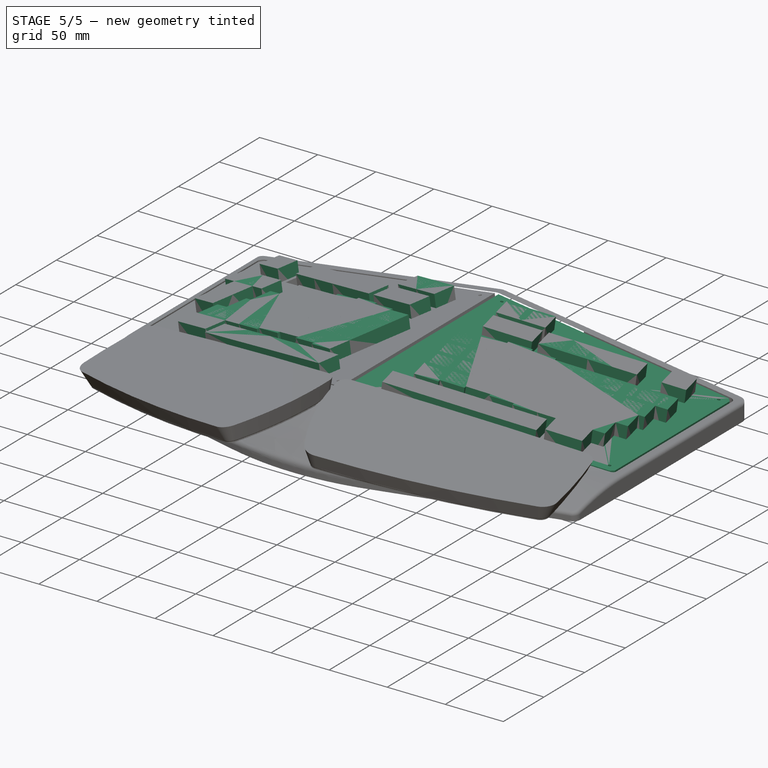
[diagram: stage 5 of 5 — iso view after this stage's code; geometry added in this stage tinted green]
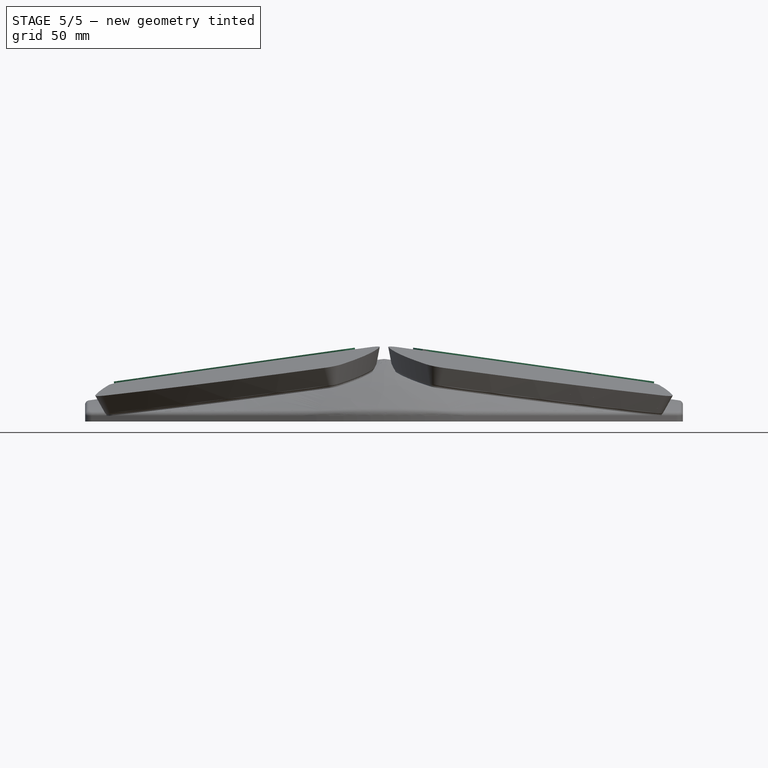
[diagram: stage 5 of 5 — front view after this stage's code; geometry added in this stage tinted green]
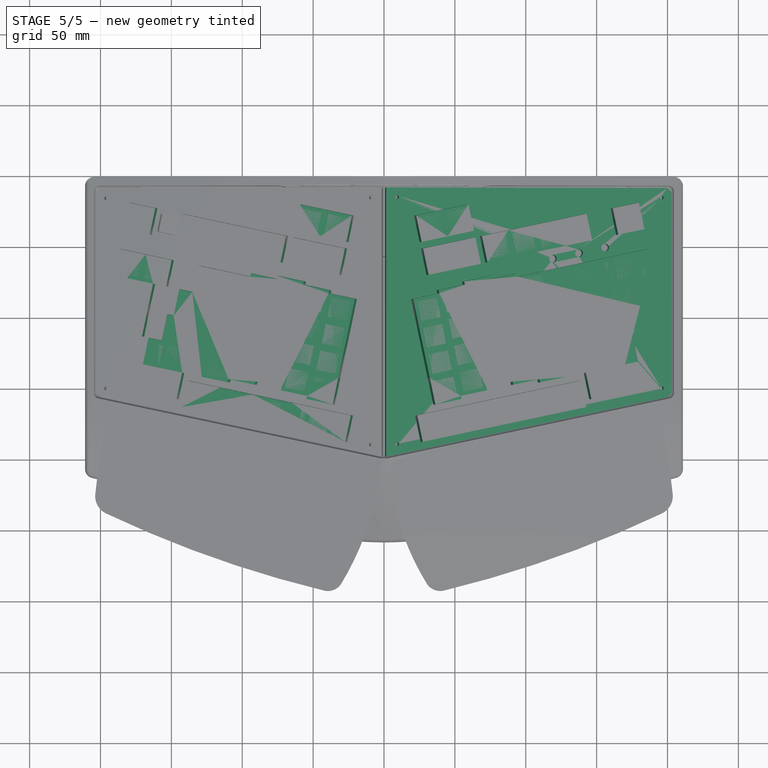
[diagram: stage 5 of 5 — top view after this stage's code; geometry added in this stage tinted green]
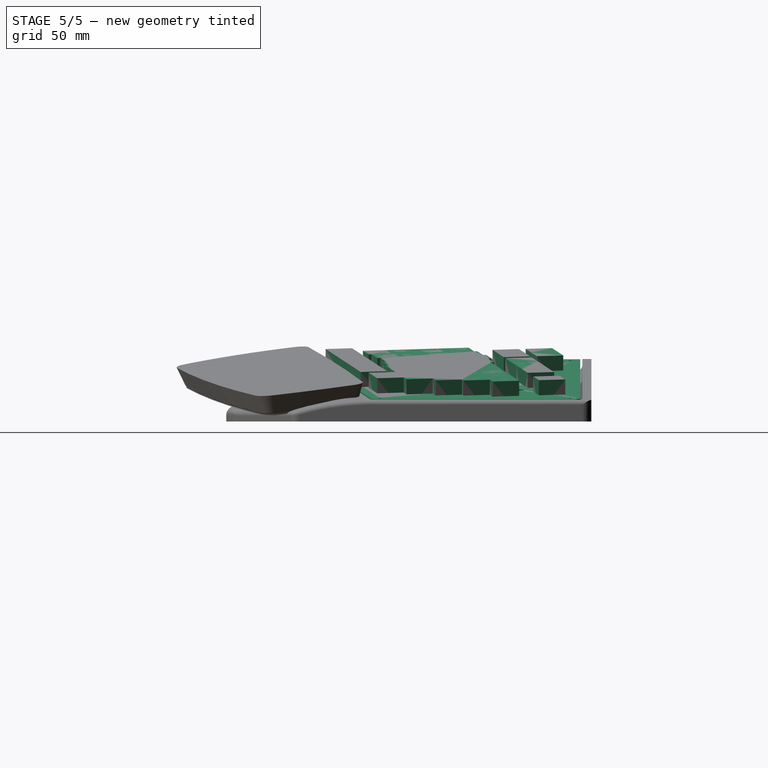
[diagram: stage 5 of 5 — right view after this stage's code; geometry added in this stage tinted green]
FEATURE [Sketcher::SketchObject] Sketch016  label="Screw Locations"
  AttachmentOffset = pos=(0,0,-17.1) rot=(0,0,1;0rad)
  ExternalGeometry = -> [Common]
  MapMode = 5
  Placement = pos=(39.9873,-3.8e-15,30.6914) rot=(0,1,0;0.139626rad)
  Support = -> [Extrude]
  expr: Constraints[31] = Spreadsheet.ScrewDiameter + Spreadsheet.ScrewClearance
  expr: Constraints[23] = Spreadsheet.ScrewEdgeOffset
  expr: Constraints[35] = Spreadsheet.ScrewDiameter
  expr: Constraints[22] = Spreadsheet.ScrewEdgeOffset
  expr: Constraints[34] = Spreadsheet.InsertDiameter
  expr: .AttachmentOffset.Base.z = -(Spreadsheet.JCapHeight + Spreadsheet.SwitchAbovePlate + Spreadsheet.PlateThickness)
  sketch-geometry (24):
    g0: GeomPoint X=-31.9983 Y=84.6499 Z=0
    g1: GeomPoint X=-31.9983 Y=-89.695 Z=0
    g2: GeomPoint X=156.655 Y=-49.5956 Z=0
    g3: GeomPoint X=156.655 Y=84.6499 Z=0
    g4: LineSegment [constr] StartX=-31.9983 StartY=84.6499 StartZ=0 EndX=-31.9983 EndY=93.0319 EndZ=0
    g5: LineSegment [constr] StartX=-31.9983 StartY=84.6499 StartZ=0 EndX=-40.3803 EndY=84.6499 EndZ=0
    g6: LineSegment [constr] StartX=-31.9983 StartY=-89.695 StartZ=0 EndX=-40.3803 EndY=-89.695 EndZ=0
    g7: LineSegment [constr] StartX=-31.9983 StartY=-89.695 StartZ=0 EndX=-31.9983 EndY=-98.077 EndZ=0
    g8: LineSegment [constr] StartX=156.655 StartY=84.6499 StartZ=0 EndX=156.655 EndY=93.0319 EndZ=0
    g9: LineSegment [constr] StartX=156.655 StartY=84.6499 StartZ=0 EndX=165.037 EndY=84.6499 EndZ=0
    g10: LineSegment [constr] StartX=156.655 StartY=-49.5956 StartZ=0 EndX=165.037 EndY=-49.5956 EndZ=0
    g11: LineSegment [constr] StartX=156.655 StartY=-49.5956 StartZ=0 EndX=156.655 EndY=-57.9776 EndZ=0
    g12: Circle CenterX=-31.9983 CenterY=84.6499 CenterZ=0 NormalX=0 NormalY=0 NormalZ=1 AngleXU=0 Radius=1.2
    g13: Circle CenterX=156.655 CenterY=84.6499 CenterZ=0 NormalX=0 NormalY=0 NormalZ=1 AngleXU=0 Radius=1.2
    g14: Circle CenterX=156.655 CenterY=-49.5956 CenterZ=0 NormalX=0 NormalY=0 NormalZ=1 AngleXU=0 Radius=1.2
    g15: Circle CenterX=-31.9983 CenterY=-89.695 CenterZ=0 NormalX=0 NormalY=0 NormalZ=1 AngleXU=0 Radius=1.2
    g16: Circle CenterX=-31.9983 CenterY=84.6499 CenterZ=0 NormalX=0 NormalY=0 NormalZ=1 AngleXU=0 Radius=1.75
    g17: Circle CenterX=-31.9983 CenterY=84.6499 CenterZ=0 NormalX=0 NormalY=0 NormalZ=1 AngleXU=0 Radius=1
    g18: Circle CenterX=156.655 CenterY=84.6499 CenterZ=0 NormalX=0 NormalY=0 NormalZ=1 AngleXU=0 Radius=1.75
    g19: Circle CenterX=156.655 CenterY=84.6499 CenterZ=0 NormalX=0 NormalY=0 NormalZ=1 AngleXU=0 Radius=1
    g20: Circle CenterX=156.655 CenterY=-49.5956 CenterZ=0 NormalX=0 NormalY=0 NormalZ=1 AngleXU=0 Radius=1.75
    g21: Circle CenterX=156.655 CenterY=-49.5956 CenterZ=0 NormalX=0 NormalY=0 NormalZ=1 AngleXU=0 Radius=1
    g22: Circle CenterX=-31.9983 CenterY=-89.695 CenterZ=0 NormalX=0 NormalY=0 NormalZ=1 AngleXU=0 Radius=1.75
    g23: Circle CenterX=-31.9983 CenterY=-89.695 CenterZ=0 NormalX=0 NormalY=0 NormalZ=1 AngleXU=0 Radius=1
  constraints (56):
    c: Coincident(g4,g0)
    c: Vertical(g4)
    c: Coincident(g5,g0)
    c: Horizontal(g5)
    c: Equal(g5,g4)
    c: Coincident(g6,g1)
    c: Horizontal(g6)
    c: Vertical(g7)
    c: Equal(g6,g5)
    c: Coincident(g1,g7)
    c: Coincident(g8,g3)
    c: Vertical(g8)
    c: Coincident(g9,g3)
    c: Horizontal(g9)
    c: Equal(g8,g9)
    c: Equal(g8,g4)
    c: Coincident(g10,g2)
    c: Horizontal(g10)
    c: Coincident(g11,g2)
    c: Vertical(g11)
    c: Equal(g10,g9)
    c: Equal(g7,g11)
    c: DistanceY(g11,g11) = 8.382
    c: DistanceY(g4,g4) = 8.382
    c: Coincident(g12,g0)
    c: Coincident(g13,g3)
    c: Coincident(g14,g2)
    c: Coincident(g15,g1)
    c: Equal(g15,g12)
    c: Equal(g12,g13)
    c: Equal(g13,g14)
    c: Diameter(g12) = 2.4
    c: Coincident(g16,g0)
    c: Coincident(g17,g0)
    c: Diameter(g16) = 3.5
    c: Diameter(g17) = 2
    c: Coincident(g18,g3)
    c: Coincident(g19,g3)
    c: Coincident(g20,g2)
    c: Coincident(g21,g2)
    c: Coincident(g22,g1)
    c: Coincident(g23,g1)
    c: Equal(g22,g16)
    c: Equal(g16,g18)
    c: Equal(g20,g18)
    c: Equal(g23,g17)
    c: Equal(g17,g19)
    c: Equal(g19,g21)
    c: PointOnObject(g4,g-5)
    c: PointOnObject(g5,g-4)
    c: PointOnObject(g6,g-4)
    c: PointOnObject(g7,g-3)
    c: PointOnObject(g11,g-3)
    c: PointOnObject(g10,g-6)
    c: PointOnObject(g9,g-6)
    c: PointOnObject(g8,g-5)
FEATURE [Sketcher::SketchObject] Sketch017  label="Threaded Insert Footprints"
  AttachmentOffset = pos=(0,0,-17.1) rot=(0,0,1;0rad)
  ExternalGeometry = -> [Sketch016]
  MapMode = 5
  Placement = pos=(39.9873,-3.8e-15,30.6914) rot=(0,1,0;0.139626rad)
  Support = -> [Extrude]
  expr: .AttachmentOffset.Base.z = -(Spreadsheet.JCapHeight + Spreadsheet.SwitchAbovePlate + Spreadsheet.PlateThickness)
  sketch-geometry (4):
    g0: Circle CenterX=-31.9983 CenterY=84.6499 CenterZ=0 NormalX=0 NormalY=0 NormalZ=1 AngleXU=0 Radius=1.75
    g1: Circle CenterX=156.655 CenterY=84.6499 CenterZ=0 NormalX=0 NormalY=0 NormalZ=1 AngleXU=0 Radius=1.75
    g2: Circle CenterX=156.655 CenterY=-49.5956 CenterZ=0 NormalX=0 NormalY=0 NormalZ=1 AngleXU=0 Radius=1.75
    g3: Circle CenterX=-31.9983 CenterY=-89.695 CenterZ=0 NormalX=0 NormalY=0 NormalZ=1 AngleXU=0 Radius=1.75
  constraints (8):
    c: Coincident(g0,g-3)
    c: Equal(g-3,g0)
    c: Coincident(g1,g-4)
    c: Equal(g1,g-4)
    c: Coincident(g2,g-5)
    c: Equal(g-5,g2)
    c: Coincident(g3,g-6)
    c: Equal(g-6,g3)
FEATURE [Part::Extrusion] Extrude008  label="Inserts"
  Base = -> Sketch017
  Dir = (0.139173,2e-16,0.990268)
  DirMode = 2
  FaceMakerClass = Part::FaceMakerBullseye
  LengthFwd = 6
  LengthRev = 0
  Reversed = true
  Solid = true
  Symmetric = false
  expr: LengthFwd = Spreadsheet.InsertDepth
FEATURE [Sketcher::SketchObject] Sketch020  label="Insert Drill Guide Footprint"
  AttachmentOffset = pos=(0,0,-17.1) rot=(0,0,1;0rad)
  ExternalGeometry = -> [Sketch016]
  MapMode = 5
  Placement = pos=(39.9873,-3.8e-15,30.6914) rot=(0,1,0;0.139626rad)
  Support = -> [Extrude]
  expr: .AttachmentOffset.Base.z = -Spreadsheet.PlateBottomDepth
  sketch-geometry (4):
    g0: Circle CenterX=-31.9983 CenterY=-89.695 CenterZ=0 NormalX=0 NormalY=0 NormalZ=1 AngleXU=0 Radius=1.75
    g1: Circle CenterX=156.655 CenterY=-49.5956 CenterZ=0 NormalX=0 NormalY=0 NormalZ=1 AngleXU=0 Radius=1.75
    g2: Circle CenterX=156.655 CenterY=84.6499 CenterZ=0 NormalX=0 NormalY=0 NormalZ=1 AngleXU=0 Radius=1.75
    g3: Circle CenterX=-31.9983 CenterY=84.6499 CenterZ=0 NormalX=0 NormalY=0 NormalZ=1 AngleXU=0 Radius=1.75
  constraints (8):
    c: Coincident(g0,g-6)
    c: Coincident(g1,g-5)
    c: Coincident(g2,g-4)
    c: Coincident(g3,g-3)
    c: Equal(g-3,g3)
    c: Equal(g-4,g2)
    c: Equal(g-5,g1)
    c: Equal(g-6,g0)
FEATURE [Part::Extrusion] Extrude011  label="Insert Drill Guides"
  Base = -> Sketch020
  Dir = (0.139173,2e-16,0.990268)
  DirMode = 2
  FaceMakerClass = Part::FaceMakerBullseye
  LengthFwd = -1.04648
  LengthRev = 0
  Solid = true
  Symmetric = false
  TaperAngle = 59
FEATURE [Part::Mirroring] Part__Mirroring003  label="Left Plate Solid w/ Screw Holes"
  Base = (0,0,0)
  Normal = (1,0,0)
  Source = -> Cut002
FEATURE [Sketcher::SketchObject] Sketch022  label="Top LED Hole Footprint"
  ExternalGeometry = -> [Sketch002]
  MapMode = 5
  Placement = pos=(42.3672,0,47.625) rot=(0,1,0;0.139626rad)
  Support = -> [Extrude]
  sketch-geometry (6):
    g0: Circle CenterX=116.082 CenterY=49.4405 CenterZ=0 NormalX=0 NormalY=0 NormalZ=1 AngleXU=0 Radius=2.7
    g1: Circle CenterX=97.4487 CenterY=45.4798 CenterZ=0 NormalX=0 NormalY=0 NormalZ=1 AngleXU=0 Radius=2.7
    g2: Circle CenterX=78.815 CenterY=41.5191 CenterZ=0 NormalX=0 NormalY=0 NormalZ=1 AngleXU=0 Radius=2.7
    g3: LineSegment [constr] StartX=78.815 StartY=41.5191 StartZ=0 EndX=144.033 EndY=55.3816 EndZ=0
    g4: LineSegment [constr] StartX=142.548 StartY=62.3693 StartZ=0 EndX=144.033 EndY=55.3816 EndZ=0
    g5: LineSegment [constr] StartX=144.033 StartY=55.3816 StartZ=0 EndX=145.518 EndY=48.394 EndZ=0
  constraints (17):
    c: PointOnObject(g3,g-4)
    c: Parallel(g3,g-3)
    c: Coincident(g2,g3)
    c: PointOnObject(g1,g3)
    c: PointOnObject(g0,g3)
    c: Distance(g2,g1) = 19.05
    c: Distance(g1,g0) = 19.05
    c: Coincident(g4,g-4)
    c: Coincident(g4,g3)
    c: Coincident(g5,g3)
    c: Coincident(g5,g-5)
    c: Distance(g0,g3) = 28.575
    c: Equal(g2,g1)
    c: Equal(g1,g0)
    c: Diameter(g2) = 5.4
    c: Distance(g4) = 7.14375
    c: Equal(g4,g5)
FEATURE [Part::Extrusion] Extrude013  label="Top LED Holes"
  Base = -> Sketch022
  Dir = (0.139173,2e-16,0.990268)
  DirMode = 2
  FaceMakerClass = Part::FaceMakerBullseye
  LengthFwd = 50.8
  LengthRev = 0
  Solid = true
  Symmetric = true
FEATURE [Part::Cut] Cut006  label="Right Top Solid w/ Screw & LED Holes"
  Base = -> Cut004
  Tool = -> Extrude013
FEATURE [Sketcher::SketchObject] Sketch023  label="Right Cutout Position Reference"
  ExternalGeometry = -> [Sketch002]
  MapMode = 2
  Placement = pos=(39.027,-5.3e-15,23.8586) rot=(0,1,0;0.139626rad)
  Support = -> [Sketch002]
  sketch-geometry (6):
    g0: LineSegment StartX=136.115 StartY=80.4775 StartZ=0 EndX=136.64 EndY=78.0054 EndZ=0
    g1: LineSegment StartX=139.112 StartY=78.5309 StartZ=0 EndX=136.64 EndY=78.0054 EndZ=0
    g2: LineSegment StartX=136.64 StartY=78.0054 StartZ=0 EndX=120.479 EndY=74.5702 EndZ=0
    g3: LineSegment StartX=136.64 StartY=78.0054 StartZ=0 EndX=140.076 EndY=61.8438 EndZ=0
    g4: LineSegment StartX=136.115 StartY=80.4775 StartZ=0 EndX=138.587 EndY=81.003 EndZ=0
    g5: LineSegment StartX=138.587 StartY=81.003 StartZ=0 EndX=139.112 EndY=78.5309 EndZ=0
  constraints (17):
    c: PointOnObject(g0,g-3)
    c: PointOnObject(g1,g-4)
    c: Coincident(g1,g0)
    c: Coincident(g2,g0)
    c: Coincident(g3,g0)
    c: Coincident(g4,g0)
    c: Coincident(g4,g-4)
    c: Coincident(g5,g4)
    c: Coincident(g5,g1)
    c: Perpendicular(g0,g4)
    c: Perpendicular(g1,g5)
    c: PointOnObject(g2,g1)
    c: PointOnObject(g3,g0)
    c: Distance(g0) = 2.5273
    c: Equal(g0,g1)
    c: Distance(g2,g1) = 19.05
    c: Distance(g0,g3) = 19.05
FEATURE [Part::Mirroring] Part__Mirroring004  label="Left Cutout Position Reference"
  Base = (9.53674e-07,71.4234,5.72751)
  Normal = (1,0,-1.19209e-07)
  Source = -> Sketch023
FEATURE [Part::Feature] Compound001002  label="Right Top Cuts Footprint"
  Placement = pos=(-188.962,94.9771,55.9004) rot=(0,1,-3e-06;0.139626rad)
  shape: bbox 170 x 169.1 x 23.89 mm, 0 faces, 0 solids (baked)
FEATURE [Part::Feature] Compound001003  label="Left Top Cuts Footprint"
  Placement = pos=(-200.212,94.977,1.20555) rot=(0,-1,3e-06;0.139626rad)
  shape: bbox 170 x 169.1 x 23.89 mm, 0 faces, 0 solids (baked)
FEATURE [Part::Extrusion] Extrude016  label="Right Top Cuts"
  Base = -> Compound001002
  Dir = (0.139173,2.6e-15,0.990268)
  DirMode = 2
  FaceMakerClass = Part::FaceMakerBullseye
  LengthFwd = 25.4
  LengthRev = 0
  Solid = true
  Symmetric = false
FEATURE [Part::Extrusion] Extrude017  label="Left Top Cuts"
  Base = -> Compound001003
  Dir = (-0.139173,4.4e-15,0.990268)
  DirMode = 2
  FaceMakerClass = Part::FaceMakerBullseye
  LengthFwd = 25.4
  LengthRev = 0
  Solid = true
  Symmetric = false
FEATURE [Part::Cut] Cut011  label="Left Plate Solid w/ Screw & Reset Switch Holes"
  Base = -> Part__Mirroring003
  Tool = -> Extrude018
FEATURE [Part::Cut] Cut013  label="Left Top Soild w/ Screw & Reset Switch Holes"
  Base = -> Part__Mirroring002
  Tool = -> Extrude018
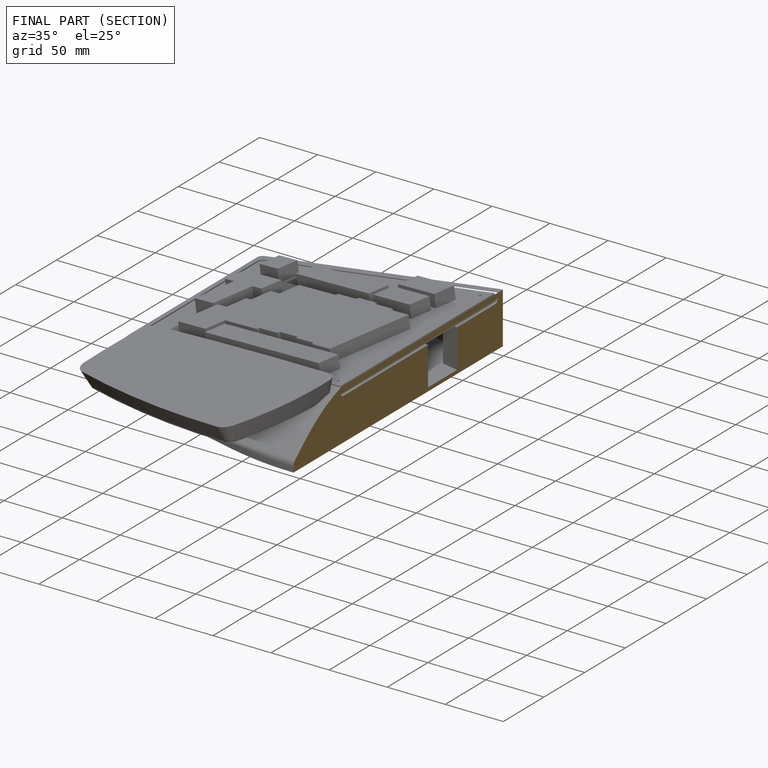
[diagram: finished part — half-section view (interior)]
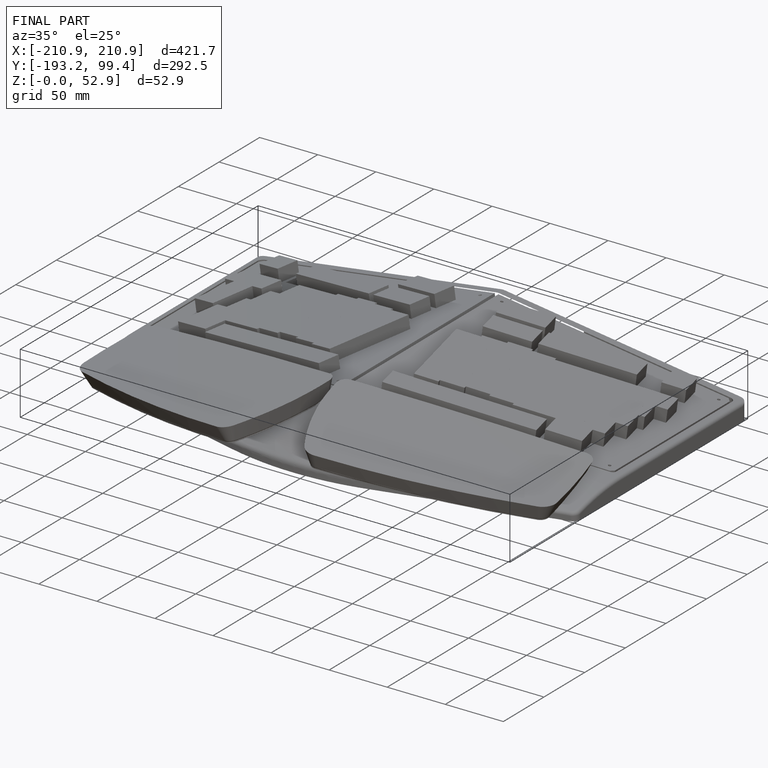
[diagram: finished part — iso view with bounding-box wireframe]
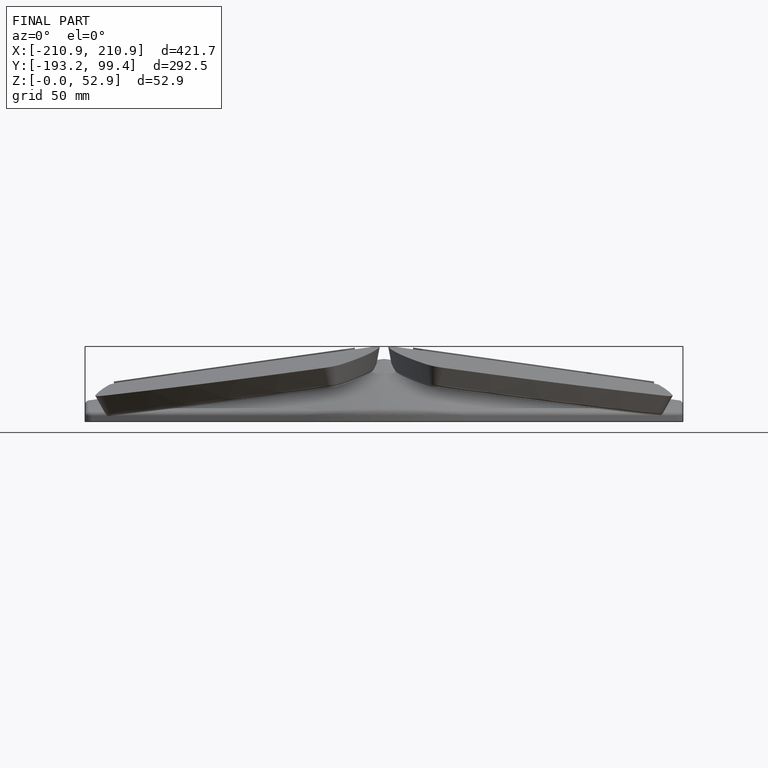
[diagram: finished part — front view with bounding-box wireframe]
